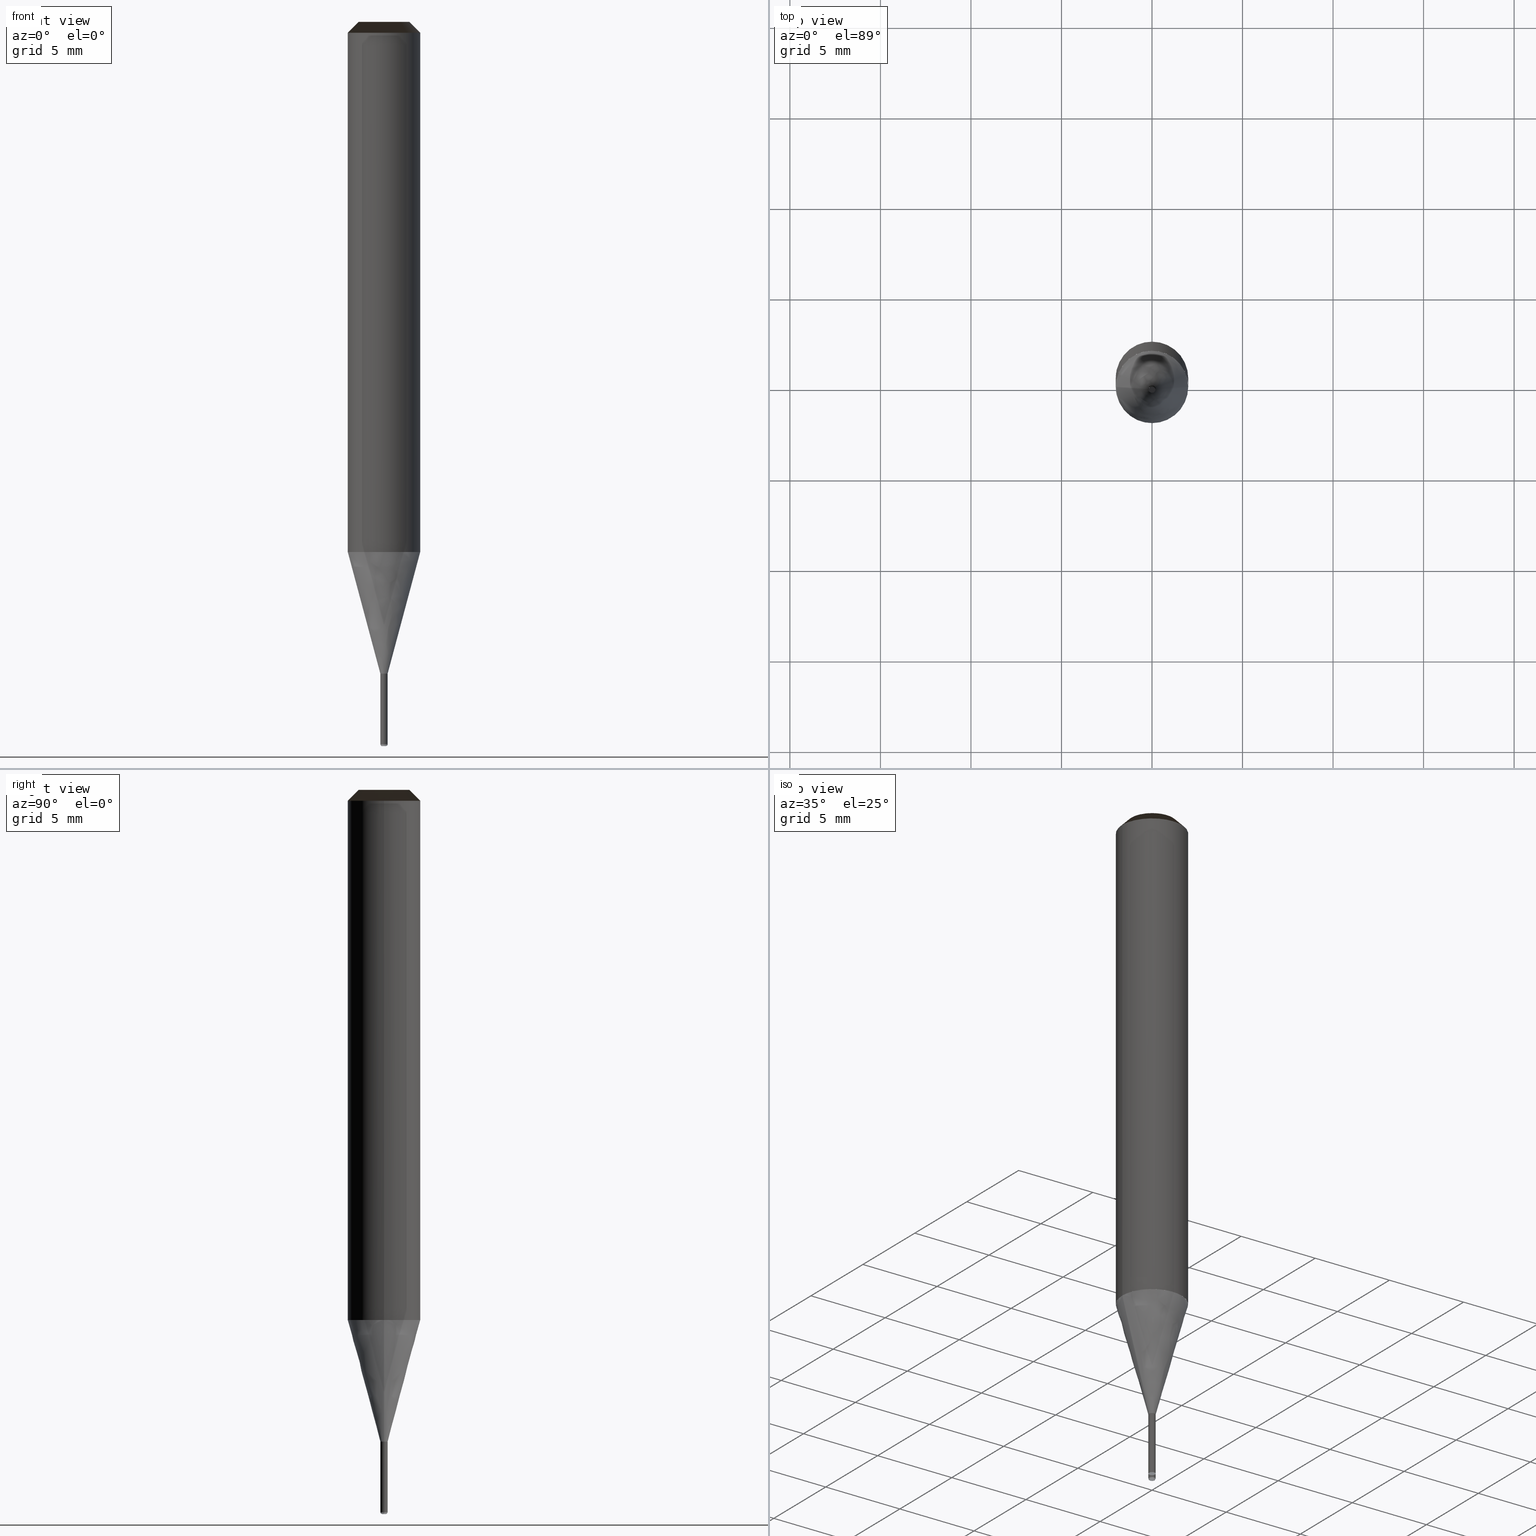
[diagram: canonical four-view strip — front | top / right | iso, engineering-drawing reading convention]
A machine part, canonical four-view strip (front | top / right | iso — engineering-drawing reading convention). The complete STEP part file that produces these views, byte-faithful:
ISO-10303-21;
HEADER;
/* Generated by ISBE GmbH (www.isbe.de) */
/* OPTION: using custom schema-name function */

FILE_DESCRIPTION(
/* description */ (''),
/* implementation_level */ '2;1');

FILE_NAME(
/*name*/ 'SHRN-2004-R001-040-STH',
/*time_stamp*/'2023-9-15T12:48:29',
/*author*/ ('ISBE GmbH'),
/*organization*/ ('ISBE GmbH'),
/*preprocessor_version*/ 'STEP IO v1.0',
/*originating_system*/ '',
/*authorisation*/ '');

FILE_SCHEMA (('AUTOMOTIVE_DESIGN'));
ENDSEC;

DATA;
#10=SHAPE_DEFINITION_REPRESENTATION(#11,#57);
#11=PRODUCT_DEFINITION_SHAPE('Document','',#13);
#12=PRODUCT_DEFINITION_CONTEXT('3D Mechanical Parts',#17,'design');
#13=PRODUCT_DEFINITION('A','First version',#14,#12);
#14=PRODUCT_DEFINITION_FORMATION_WITH_SPECIFIED_SOURCE('A','First version',#19,.MADE.);
#15=PRODUCT_RELATED_PRODUCT_CATEGORY('tool','tool',(#19));
#16=APPLICATION_PROTOCOL_DEFINITION('Draft International Standard', 'automotive_design',1999,#17);
#17=APPLICATION_CONTEXT('data for automotive mechanical design processes');
#18=PRODUCT_CONTEXT('3D Mechanical Parts',#17,'mechanical');
#19=PRODUCT('Document','Document','ISBE converted to STEP',(#18));
#20=(
LENGTH_UNIT()
NAMED_UNIT(*)
SI_UNIT(.MILLI.,.METRE.)
);
#21=(
NAMED_UNIT(*)
PLANE_ANGLE_UNIT()
SI_UNIT($,.RADIAN.)
);
#22=DIMENSIONAL_EXPONENTS(0.,0.,0.,0.,0.,0.,0.);
#23=PLANE_ANGLE_MEASURE_WITH_UNIT(PLANE_ANGLE_MEASURE(0.01745329252),#21);
#24=(
CONVERSION_BASED_UNIT('DEGREES',#23)
NAMED_UNIT(#22)
PLANE_ANGLE_UNIT()
);
#25=(
NAMED_UNIT(*)
SI_UNIT($,.STERADIAN.)
SOLID_ANGLE_UNIT()
);
#26=UNCERTAINTY_MEASURE_WITH_UNIT(LENGTH_MEASURE(0.001),#20, 'DISTANCE_ACCURACY_VALUE', 'Maximum model space distance between geometric entities at asserted connectivities');
#27=(
GEOMETRIC_REPRESENTATION_CONTEXT(3)
GLOBAL_UNCERTAINTY_ASSIGNED_CONTEXT((#26))
GLOBAL_UNIT_ASSIGNED_CONTEXT((#25,#24,#20))
REPRESENTATION_CONTEXT('ID1','3D')
);
#28=CARTESIAN_POINT('',(0.0,0.0,0.0));
#29=DIRECTION('',(1.0,0.0,0.0));
#30=DIRECTION('',(0.0,0.0,1.0));
#31=AXIS2_PLACEMENT_3D('',#28,#30,#29);
#32=CARTESIAN_POINT('',(0.0,0.0,0.0));
#33=DIRECTION('',(1.0,0.0,0.0));
#34=DIRECTION('',(0.0,0.0,1.0));
#35=AXIS2_PLACEMENT_3D('',#32,#34,#33);
#36=CARTESIAN_POINT('',(0.0,0.0,0.0));
#37=DIRECTION('',(1.0,0.0,0.0));
#38=DIRECTION('',(0.0,0.0,1.0));
#39=AXIS2_PLACEMENT_3D('',#36,#38,#37);
#40=CARTESIAN_POINT('',(0.0,0.0,0.0));
#41=DIRECTION('',(0.0,0.0,1.0));
#42=DIRECTION('',(1.0,0.0,0.0));
#43=AXIS2_PLACEMENT_3D('MCS',#40,#42,#41);
#44=CARTESIAN_POINT('',(0.0,0.0,29.282));
#45=DIRECTION('',(0.0,0.0,1.0));
#46=DIRECTION('',(1.0,0.0,0.0));
#47=AXIS2_PLACEMENT_3D('PCS',#44,#46,#45);
#48=CARTESIAN_POINT('',(0.0,0.0,-10.718));
#49=DIRECTION('',(0.0,0.0,1.0));
#50=DIRECTION('',(1.0,0.0,0.0));
#51=AXIS2_PLACEMENT_3D('CIP',#48,#50,#49);
#52=CARTESIAN_POINT('',(0.0,-0.2,-10.718));
#53=DIRECTION('',(0.0,0.0,1.0));
#54=DIRECTION('',(1.0,0.0,0.0));
#55=AXIS2_PLACEMENT_3D('CRP',#52,#54,#53);
#57=SHAPE_REPRESENTATION('Document',(#31,#35,#39,#43,#47,#51,#55),#27);
#58=DIRECTION('',(1.0,0.0,0.0));
#59=DIRECTION('',(0.0,0.0,1.0));
#60=CARTESIAN_POINT('',(-0.001999899997,-0.00002,-10.718));
#61=CARTESIAN_POINT('',(-0.001876510371,-0.012358345716,-10.718));
#62=CARTESIAN_POINT('',(-0.001750701282,-0.024938625564,-10.718));
#63=CARTESIAN_POINT('',(-0.001625433711,-0.037464756308,-10.718));
#64=CARTESIAN_POINT('',(-0.001500300158,-0.049977485926,-10.718));
#65=CARTESIAN_POINT('',(-0.001375220079,-0.062484868326,-10.718));
#66=CARTESIAN_POINT('',(-0.001250166712,-0.074989579831,-10.718));
#67=CARTESIAN_POINT('',(-0.001125128599,-0.087492765905,-10.718));
#68=CARTESIAN_POINT('',(-0.001000100018,-0.099994998875,-10.718));
#69=CARTESIAN_POINT('',(-0.000953992002,-0.103136663892,-10.717950656037));
#70=CARTESIAN_POINT('',(-0.000876759676,-0.106275435433,-10.717802672843));
#71=CARTESIAN_POINT('',(-0.00076580686,-0.109408151216,-10.71755619646));
#72=CARTESIAN_POINT('',(-0.000618591757,-0.112531623155,-10.717211470131));
#73=CARTESIAN_POINT('',(-0.000432640068,-0.115642637214,-10.71676883406));
#74=CARTESIAN_POINT('',(-0.000205557966,-0.118737953529,-10.716228725073));
#75=CARTESIAN_POINT('',(0.000064955117,-0.121814306822,-10.715591676194));
#76=CARTESIAN_POINT('',(0.000381093934,-0.124868407175,-10.714858316113));
#77=CARTESIAN_POINT('',(0.000744935158,-0.127896941187,-10.714029368568));
#78=CARTESIAN_POINT('',(0.001158425449,-0.130896573546,-10.71310565163));
#79=CARTESIAN_POINT('',(0.001623369912,-0.133863949072,-10.712088076895));
#80=CARTESIAN_POINT('',(0.002141420988,-0.136795695227,-10.710977648589));
#81=CARTESIAN_POINT('',(0.002714067836,-0.139688425143,-10.709775462568));
#82=CARTESIAN_POINT('',(0.003342626254,-0.142538741163,-10.708482705247));
#83=CARTESIAN_POINT('',(0.004028229177,-0.145343238931,-10.707100652419));
#84=CARTESIAN_POINT('',(0.004771817827,-0.148098512017,-10.705630668004));
#85=CARTESIAN_POINT('',(0.005574133534,-0.150801157091,-10.7040742027));
#86=CARTESIAN_POINT('',(0.006435710288,-0.153447779635,-10.70243279255));
#87=CARTESIAN_POINT('',(0.007356868075,-0.156035000195,-10.700708057427));
#88=CARTESIAN_POINT('',(0.008337707017,-0.158559461136,-10.698901699437));
#89=CARTESIAN_POINT('',(0.009378102382,-0.161017833897,-10.697015501238));
#90=CARTESIAN_POINT('',(0.01047770048,-0.163406826708,-10.695051324278));
#91=CARTESIAN_POINT('',(0.011635915496,-0.165723192732,-10.693011106963));
#92=CARTESIAN_POINT('',(0.012851927281,-0.167963738605,-10.690896862742));
#93=CARTESIAN_POINT('',(0.014124680134,-0.170125333313,-10.688710678119));
#94=CARTESIAN_POINT('',(0.015452882597,-0.172204917367,-10.686454710593));
#95=CARTESIAN_POINT('',(0.016835008275,-0.174199512217,-10.684131186532));
#96=CARTESIAN_POINT('',(0.018269297715,-0.176106229843,-10.681742398975));
#97=CARTESIAN_POINT('',(0.019753761321,-0.177922282463,-10.679290705365));
#98=CARTESIAN_POINT('',(0.021286183343,-0.179644992299,-10.676778525229));
#99=CARTESIAN_POINT('',(0.02286412691,-0.181271801308,-10.674208337785));
#100=CARTESIAN_POINT('',(0.024484940116,-0.182800280841,-10.671582679498));
#101=CARTESIAN_POINT('',(0.026145763133,-0.184228141121,-10.668904141575));
#102=CARTESIAN_POINT('',(0.027843536341,-0.185553240499,-10.66617536741));
#103=CARTESIAN_POINT('',(0.029575009438,-0.186773594392,-10.663399049974));
#104=CARTESIAN_POINT('',(0.031336751509,-0.187887383831,-10.660577929157));
#105=CARTESIAN_POINT('',(0.033125161996,-0.188892963569,-10.657714789063));
#106=CARTESIAN_POINT('',(0.034936482548,-0.189788869647,-10.654812455268));
#107=CARTESIAN_POINT('',(0.036766809676,-0.190573826375,-10.651873792025));
#108=CARTESIAN_POINT('',(0.038612108175,-0.191246752652,-10.648901699437));
#109=CARTESIAN_POINT('',(0.040468225237,-0.191806767574,-10.645899110604));
#110=CARTESIAN_POINT('',(0.042330905197,-0.192253195261,-10.642868988716));
#111=CARTESIAN_POINT('',(0.044195804835,-0.192585568868,-10.63981432414));
#112=CARTESIAN_POINT('',(0.046058509156,-0.192803633727,-10.636738131459));
#113=CARTESIAN_POINT('',(0.04791454758,-0.192907349584,-10.633643446504));
#114=CARTESIAN_POINT('',(0.049759410446,-0.192896891898,-10.630533323356));
#115=CARTESIAN_POINT('',(0.05158856575,-0.192772652183,-10.627410831332));
#116=CARTESIAN_POINT('',(0.053397476031,-0.192535237369,-10.624279051953));
#117=CARTESIAN_POINT('',(0.055181615323,-0.192185468181,-10.621141075908));
#118=CARTESIAN_POINT('',(0.056936486071,-0.191724376525,-10.618));
#119=CARTESIAN_POINT('',(0.096793252774,-0.175017331192,-10.543));
#120=CARTESIAN_POINT('',(0.132130531457,-0.150138345058,-10.468));
#121=CARTESIAN_POINT('',(0.16129834753,-0.118249072234,-10.393));
#122=CARTESIAN_POINT('',(0.182934792063,-0.080838492396,-10.318));
#123=CARTESIAN_POINT('',(0.001999899997,0.00002,-10.718));
#124=CARTESIAN_POINT('',(0.001876510371,0.012358345716,-10.718));
#125=CARTESIAN_POINT('',(0.001750701282,0.024938625564,-10.718));
#126=CARTESIAN_POINT('',(0.001625433711,0.037464756308,-10.718));
#127=CARTESIAN_POINT('',(0.001500300158,0.049977485926,-10.718));
#128=CARTESIAN_POINT('',(0.001375220079,0.062484868326,-10.718));
#129=CARTESIAN_POINT('',(0.001250166712,0.074989579831,-10.718));
#130=CARTESIAN_POINT('',(0.001125128599,0.087492765905,-10.718));
#131=CARTESIAN_POINT('',(0.001000100018,0.099994998875,-10.718));
#132=CARTESIAN_POINT('',(0.000953992002,0.103136663892,-10.717950656037));
#133=CARTESIAN_POINT('',(0.000876759676,0.106275435433,-10.717802672843));
#134=CARTESIAN_POINT('',(0.00076580686,0.109408151216,-10.71755619646));
#135=CARTESIAN_POINT('',(0.000618591757,0.112531623155,-10.717211470131));
#136=CARTESIAN_POINT('',(0.000432640068,0.115642637214,-10.71676883406));
#137=CARTESIAN_POINT('',(0.000205557966,0.118737953529,-10.716228725073));
#138=CARTESIAN_POINT('',(-0.000064955117,0.121814306822,-10.715591676194));
#139=CARTESIAN_POINT('',(-0.000381093934,0.124868407175,-10.714858316113));
#140=CARTESIAN_POINT('',(-0.000744935158,0.127896941187,-10.714029368568));
#141=CARTESIAN_POINT('',(-0.001158425449,0.130896573546,-10.71310565163));
#142=CARTESIAN_POINT('',(-0.001623369912,0.133863949072,-10.712088076895));
#143=CARTESIAN_POINT('',(-0.002141420988,0.136795695227,-10.710977648589));
#144=CARTESIAN_POINT('',(-0.002714067836,0.139688425143,-10.709775462568));
#145=CARTESIAN_POINT('',(-0.003342626254,0.142538741163,-10.708482705247));
#146=CARTESIAN_POINT('',(-0.004028229177,0.145343238931,-10.707100652419));
#147=CARTESIAN_POINT('',(-0.004771817827,0.148098512017,-10.705630668004));
#148=CARTESIAN_POINT('',(-0.005574133534,0.150801157091,-10.7040742027));
#149=CARTESIAN_POINT('',(-0.006435710288,0.153447779635,-10.70243279255));
#150=CARTESIAN_POINT('',(-0.007356868075,0.156035000195,-10.700708057427));
#151=CARTESIAN_POINT('',(-0.008337707017,0.158559461136,-10.698901699437));
#152=CARTESIAN_POINT('',(-0.009378102382,0.161017833897,-10.697015501238));
#153=CARTESIAN_POINT('',(-0.01047770048,0.163406826708,-10.695051324278));
#154=CARTESIAN_POINT('',(-0.011635915496,0.165723192732,-10.693011106963));
#155=CARTESIAN_POINT('',(-0.012851927281,0.167963738605,-10.690896862742));
#156=CARTESIAN_POINT('',(-0.014124680134,0.170125333313,-10.688710678119));
#157=CARTESIAN_POINT('',(-0.015452882597,0.172204917367,-10.686454710593));
#158=CARTESIAN_POINT('',(-0.016835008275,0.174199512217,-10.684131186532));
#159=CARTESIAN_POINT('',(-0.018269297715,0.176106229843,-10.681742398975));
#160=CARTESIAN_POINT('',(-0.019753761321,0.177922282463,-10.679290705365));
#161=CARTESIAN_POINT('',(-0.021286183343,0.179644992299,-10.676778525229));
#162=CARTESIAN_POINT('',(-0.02286412691,0.181271801308,-10.674208337785));
#163=CARTESIAN_POINT('',(-0.024484940116,0.182800280841,-10.671582679498));
#164=CARTESIAN_POINT('',(-0.026145763133,0.184228141121,-10.668904141575));
#165=CARTESIAN_POINT('',(-0.027843536341,0.185553240499,-10.66617536741));
#166=CARTESIAN_POINT('',(-0.029575009438,0.186773594392,-10.663399049974));
#167=CARTESIAN_POINT('',(-0.031336751509,0.187887383831,-10.660577929157));
#168=CARTESIAN_POINT('',(-0.033125161996,0.188892963569,-10.657714789063));
#169=CARTESIAN_POINT('',(-0.034936482548,0.189788869647,-10.654812455268));
#170=CARTESIAN_POINT('',(-0.036766809676,0.190573826375,-10.651873792025));
#171=CARTESIAN_POINT('',(-0.038612108175,0.191246752652,-10.648901699437));
#172=CARTESIAN_POINT('',(-0.040468225237,0.191806767574,-10.645899110604));
#173=CARTESIAN_POINT('',(-0.042330905197,0.192253195261,-10.642868988716));
#174=CARTESIAN_POINT('',(-0.044195804835,0.192585568868,-10.63981432414));
#175=CARTESIAN_POINT('',(-0.046058509156,0.192803633727,-10.636738131459));
#176=CARTESIAN_POINT('',(-0.04791454758,0.192907349584,-10.633643446504));
#177=CARTESIAN_POINT('',(-0.049759410446,0.192896891898,-10.630533323356));
#178=CARTESIAN_POINT('',(-0.05158856575,0.192772652183,-10.627410831332));
#179=CARTESIAN_POINT('',(-0.053397476031,0.192535237369,-10.624279051953));
#180=CARTESIAN_POINT('',(-0.055181615323,0.192185468181,-10.621141075908));
#181=CARTESIAN_POINT('',(-0.056936486071,0.191724376525,-10.618));
#182=CARTESIAN_POINT('',(-0.096793252774,0.175017331192,-10.543));
#183=CARTESIAN_POINT('',(-0.132130531457,0.150138345058,-10.468));
#184=CARTESIAN_POINT('',(-0.16129834753,0.118249072234,-10.393));
#185=CARTESIAN_POINT('',(-0.182934792063,0.080838492396,-10.318));
#186=CARTESIAN_POINT('',(0.0,0.0,-10.718));
#187=CARTESIAN_POINT('',(0.1,0.0,-10.718));
#188=CARTESIAN_POINT('',(0.1,0.1,-10.718));
#189=CARTESIAN_POINT('',(0.0,0.1,-10.718));
#190=CARTESIAN_POINT('',(-0.1,0.1,-10.718));
#191=CARTESIAN_POINT('',(-0.1,0.0,-10.718));
#192=CARTESIAN_POINT('',(0.141421356237,0.0,-10.718));
#193=CARTESIAN_POINT('',(0.141421356237,0.141421356237,-10.718));
#194=CARTESIAN_POINT('',(0.0,0.141421356237,-10.718));
#195=CARTESIAN_POINT('',(-0.141421356237,0.141421356237,-10.718));
#196=CARTESIAN_POINT('',(-0.141421356237,0.0,-10.718));
#197=CARTESIAN_POINT('',(0.170710678119,0.0,-10.688710678119));
#198=CARTESIAN_POINT('',(0.170710678119,0.170710678119,-10.688710678119));
#199=CARTESIAN_POINT('',(0.0,0.170710678119,-10.688710678119));
#200=CARTESIAN_POINT('',(-0.170710678119,0.170710678119,-10.688710678119));
#201=CARTESIAN_POINT('',(-0.170710678119,0.0,-10.688710678119));
#202=CARTESIAN_POINT('',(0.2,0.0,-10.659421356237));
#203=CARTESIAN_POINT('',(0.2,0.2,-10.659421356237));
#204=CARTESIAN_POINT('',(0.0,0.2,-10.659421356237));
#205=CARTESIAN_POINT('',(-0.2,0.2,-10.659421356237));
#206=CARTESIAN_POINT('',(-0.2,0.0,-10.659421356237));
#207=CARTESIAN_POINT('',(0.2,0.0,-10.618));
#208=CARTESIAN_POINT('',(0.2,0.2,-10.618));
#209=CARTESIAN_POINT('',(0.0,0.2,-10.618));
#210=CARTESIAN_POINT('',(-0.2,0.2,-10.618));
#211=CARTESIAN_POINT('',(-0.2,0.0,-10.618));
#212=CARTESIAN_POINT('',(0.2,0.0,-10.318));
#213=CARTESIAN_POINT('',(0.2,0.2,-10.318));
#214=CARTESIAN_POINT('',(0.0,0.2,-10.318));
#215=CARTESIAN_POINT('',(-0.2,0.2,-10.318));
#216=CARTESIAN_POINT('',(-0.2,0.0,-10.318));
#217=CARTESIAN_POINT('',(0.0,0.0,-10.318));
#218=CARTESIAN_POINT('',(-0.1,-0.1,-10.718));
#219=CARTESIAN_POINT('',(0.0,-0.1,-10.718));
#220=CARTESIAN_POINT('',(0.1,-0.1,-10.718));
#221=CARTESIAN_POINT('',(-0.141421356237,-0.141421356237,-10.718));
#222=CARTESIAN_POINT('',(0.0,-0.141421356237,-10.718));
#223=CARTESIAN_POINT('',(0.141421356237,-0.141421356237,-10.718));
#224=CARTESIAN_POINT('',(-0.170710678119,-0.170710678119,-10.688710678119));
#225=CARTESIAN_POINT('',(0.0,-0.170710678119,-10.688710678119));
#226=CARTESIAN_POINT('',(0.170710678119,-0.170710678119,-10.688710678119));
#227=CARTESIAN_POINT('',(-0.2,-0.2,-10.659421356237));
#228=CARTESIAN_POINT('',(0.0,-0.2,-10.659421356237));
#229=CARTESIAN_POINT('',(0.2,-0.2,-10.659421356237));
#230=CARTESIAN_POINT('',(-0.2,-0.2,-10.618));
#231=CARTESIAN_POINT('',(0.0,-0.2,-10.618));
#232=CARTESIAN_POINT('',(0.2,-0.2,-10.618));
#233=CARTESIAN_POINT('',(-0.2,-0.2,-10.318));
#234=CARTESIAN_POINT('',(0.0,-0.2,-10.318));
#235=CARTESIAN_POINT('',(0.2,-0.2,-10.318));
#236=CARTESIAN_POINT('',(0.2,0.0,-6.717691453624));
#237=CARTESIAN_POINT('',(0.2,0.2,-6.717691453624));
#238=CARTESIAN_POINT('',(0.0,0.2,-6.717691453624));
#239=CARTESIAN_POINT('',(-0.2,0.2,-6.717691453624));
#240=CARTESIAN_POINT('',(-0.2,0.0,-6.717691453624));
#241=CARTESIAN_POINT('',(2.0,0.0,0.0));
#242=CARTESIAN_POINT('',(2.0,2.0,0.0));
#243=CARTESIAN_POINT('',(0.0,2.0,0.0));
#244=CARTESIAN_POINT('',(-2.0,2.0,0.0));
#245=CARTESIAN_POINT('',(-2.0,0.0,0.0));
#246=CARTESIAN_POINT('',(2.0,0.0,28.682));
#247=CARTESIAN_POINT('',(2.0,2.0,28.682));
#248=CARTESIAN_POINT('',(0.0,2.0,28.682));
#249=CARTESIAN_POINT('',(-2.0,2.0,28.682));
#250=CARTESIAN_POINT('',(-2.0,0.0,28.682));
#251=CARTESIAN_POINT('',(1.4,0.0,29.282));
#252=CARTESIAN_POINT('',(1.4,1.4,29.282));
#253=CARTESIAN_POINT('',(0.0,1.4,29.282));
#254=CARTESIAN_POINT('',(-1.4,1.4,29.282));
#255=CARTESIAN_POINT('',(-1.4,0.0,29.282));
#256=CARTESIAN_POINT('',(0.0,0.0,29.282));
#257=CARTESIAN_POINT('',(-0.2,-0.2,-6.717691453624));
#258=CARTESIAN_POINT('',(0.0,-0.2,-6.717691453624));
#259=CARTESIAN_POINT('',(0.2,-0.2,-6.717691453624));
#260=CARTESIAN_POINT('',(-2.0,-2.0,0.0));
#261=CARTESIAN_POINT('',(0.0,-2.0,0.0));
#262=CARTESIAN_POINT('',(2.0,-2.0,0.0));
#263=CARTESIAN_POINT('',(-2.0,-2.0,28.682));
#264=CARTESIAN_POINT('',(0.0,-2.0,28.682));
#265=CARTESIAN_POINT('',(2.0,-2.0,28.682));
#266=CARTESIAN_POINT('',(-1.4,-1.4,29.282));
#267=CARTESIAN_POINT('',(0.0,-1.4,29.282));
#268=CARTESIAN_POINT('',(1.4,-1.4,29.282));
#269=(
BOUNDED_CURVE()
B_SPLINE_CURVE(1,(#60,#61,#62,#63,#64,#65,#66,#67,#68,#69,#70,#71,#72,#73,#74,#75,#76,#77,#78,#79,#80,#81,#82,#83,#84,#85,#86,#87,#88,#89,#90,#91,#92,#93,#94,#95,#96,#97,#98,#99,#100,#101,#102,#103,#104,#105,#106,#107,#108,#109,#110,#111,#112,#113,#114,#115,#116,#117,#118,#119,#120,#121,#122),.UNSPECIFIED.,.F.,.F.)
B_SPLINE_CURVE_WITH_KNOTS((2,1,1,1,1,1,1,1,1,1,1,1,1,1,1,1,1,1,1,1,1,1,1,1,1,1,1,1,1,1,1,1,1,1,1,1,1,1,1,1,1,1,1,1,1,1,1,1,1,1,1,1,1,1,1,1,1,1,1,1,1,1,2),
(0.0,0.020087942765,0.04056977618,0.060963449956,0.081335305484,0.101698455261,0.122057256577,0.142413574354,0.162768340392,0.167884180994,0.173001350503,0.178120389108,0.183241916522,0.188366632769,0.193495317859,0.198628830292,0.203768104338,0.208914146071,0.214068028138,0.21923088328,0.224403896656,0.229588296999,0.234785346725,0.239996331074,0.245222546417,0.250465287884,0.255725836454,0.261005445704,0.266305328364,0.2716266429,0.276970480275,0.282337851092,0.28772967327,0.293146760439,0.298589811173,0.304059399214,0.309555964785,0.315079807099,0.320631078121,0.326209777658,0.331815749794,0.337448680705,0.343108097845,0.348793370492,0.354503711627,0.36023818111,0.365995690096,0.371775006643,0.377574762433,0.383393460546,0.389229484204,0.395081106403,0.400946500358,0.406823750662,0.412710865085,0.418605786916,0.424506407762,0.430410580714,0.436316133788,0.577237100341,0.718158066894,0.859079033447,1.0),.UNSPECIFIED.)
CURVE()
GEOMETRIC_REPRESENTATION_ITEM()
RATIONAL_B_SPLINE_CURVE((1.0,1.0,1.0,1.0,1.0,1.0,1.0,1.0,1.0,1.0,1.0,1.0,1.0,1.0,1.0,1.0,1.0,1.0,1.0,1.0,1.0,1.0,1.0,1.0,1.0,1.0,1.0,1.0,1.0,1.0,1.0,1.0,1.0,1.0,1.0,1.0,1.0,1.0,1.0,1.0,1.0,1.0,1.0,1.0,1.0,1.0,1.0,1.0,1.0,1.0,1.0,1.0,1.0,1.0,1.0,1.0,1.0,1.0,1.0,1.0,1.0,1.0,1.0))
REPRESENTATION_ITEM('')
);
#270=(
BOUNDED_CURVE()
B_SPLINE_CURVE(1,(#123,#124,#125,#126,#127,#128,#129,#130,#131,#132,#133,#134,#135,#136,#137,#138,#139,#140,#141,#142,#143,#144,#145,#146,#147,#148,#149,#150,#151,#152,#153,#154,#155,#156,#157,#158,#159,#160,#161,#162,#163,#164,#165,#166,#167,#168,#169,#170,#171,#172,#173,#174,#175,#176,#177,#178,#179,#180,#181,#182,#183,#184,#185),.UNSPECIFIED.,.F.,.F.)
B_SPLINE_CURVE_WITH_KNOTS((2,1,1,1,1,1,1,1,1,1,1,1,1,1,1,1,1,1,1,1,1,1,1,1,1,1,1,1,1,1,1,1,1,1,1,1,1,1,1,1,1,1,1,1,1,1,1,1,1,1,1,1,1,1,1,1,1,1,1,1,1,1,2),
(0.0,0.020087942765,0.04056977618,0.060963449956,0.081335305484,0.101698455261,0.122057256577,0.142413574354,0.162768340392,0.167884180994,0.173001350503,0.178120389108,0.183241916522,0.188366632769,0.193495317859,0.198628830292,0.203768104338,0.208914146071,0.214068028138,0.21923088328,0.224403896656,0.229588296999,0.234785346725,0.239996331074,0.245222546417,0.250465287884,0.255725836454,0.261005445704,0.266305328364,0.2716266429,0.276970480275,0.282337851092,0.28772967327,0.293146760439,0.298589811173,0.304059399214,0.309555964785,0.315079807099,0.320631078121,0.326209777658,0.331815749794,0.337448680705,0.343108097845,0.348793370492,0.354503711627,0.36023818111,0.365995690096,0.371775006643,0.377574762433,0.383393460546,0.389229484204,0.395081106403,0.400946500358,0.406823750662,0.412710865085,0.418605786916,0.424506407762,0.430410580714,0.436316133788,0.577237100341,0.718158066894,0.859079033447,1.0),.UNSPECIFIED.)
CURVE()
GEOMETRIC_REPRESENTATION_ITEM()
RATIONAL_B_SPLINE_CURVE((1.0,1.0,1.0,1.0,1.0,1.0,1.0,1.0,1.0,1.0,1.0,1.0,1.0,1.0,1.0,1.0,1.0,1.0,1.0,1.0,1.0,1.0,1.0,1.0,1.0,1.0,1.0,1.0,1.0,1.0,1.0,1.0,1.0,1.0,1.0,1.0,1.0,1.0,1.0,1.0,1.0,1.0,1.0,1.0,1.0,1.0,1.0,1.0,1.0,1.0,1.0,1.0,1.0,1.0,1.0,1.0,1.0,1.0,1.0,1.0,1.0,1.0,1.0))
REPRESENTATION_ITEM('')
);
#271=SHAPE_REPRESENTATION_RELATIONSHIP('','',#57,#272);
#272=GEOMETRICALLY_BOUNDED_WIREFRAME_SHAPE_REPRESENTATION('Curves',(#273,#31),#27);
#273=GEOMETRIC_CURVE_SET('CurveSet',(#269,#270));
#274=(
BOUNDED_SURFACE()
B_SPLINE_SURFACE(1,2,(
(#186,#186,#186,#186,#186),
(#187,#188,#189,#190,#191)
), .UNSPECIFIED.,.F.,.F.,.F.)
B_SPLINE_SURFACE_WITH_KNOTS((2,2),(3,2,3),(
0.0,1.0),(
0.0,0.5,1.0), .UNSPECIFIED.)
GEOMETRIC_REPRESENTATION_ITEM()
RATIONAL_B_SPLINE_SURFACE(((1.0,0.707106781187,1.0,0.707106781187,1.0),
(1.0,0.707106781187,1.0,0.707106781187,1.0)
))
REPRESENTATION_ITEM('')
SURFACE()
);
#275=(
BOUNDED_CURVE()
B_SPLINE_CURVE(2,(#187,#188,#189,#190,#191),.UNSPECIFIED.,.F.,.F.)
B_SPLINE_CURVE_WITH_KNOTS((3,2,3),
(0.0,0.5,1.0),.UNSPECIFIED.)
CURVE()
GEOMETRIC_REPRESENTATION_ITEM()
RATIONAL_B_SPLINE_CURVE((1.0,0.707106781187,1.0,0.707106781187,1.0))
REPRESENTATION_ITEM('')
);
#276=(
BOUNDED_CURVE()
B_SPLINE_CURVE(1,(#191,#186),.UNSPECIFIED.,.F.,.F.)
B_SPLINE_CURVE_WITH_KNOTS((2,2),
(0.0,1.0),.UNSPECIFIED.)
CURVE()
GEOMETRIC_REPRESENTATION_ITEM()
RATIONAL_B_SPLINE_CURVE((1.0,1.0))
REPRESENTATION_ITEM('')
);
#277=(
BOUNDED_CURVE()
B_SPLINE_CURVE(1,(#186,#187),.UNSPECIFIED.,.F.,.F.)
B_SPLINE_CURVE_WITH_KNOTS((2,2),
(0.0,1.0),.UNSPECIFIED.)
CURVE()
GEOMETRIC_REPRESENTATION_ITEM()
RATIONAL_B_SPLINE_CURVE((1.0,1.0))
REPRESENTATION_ITEM('')
);
#278=VERTEX_POINT('',#186);
#279=VERTEX_POINT('',#187);
#280=VERTEX_POINT('',#191);
#281=EDGE_CURVE('',#279,#280,#275,.T.);
#282=EDGE_CURVE('',#280,#278,#276,.T.);
#283=EDGE_CURVE('',#278,#279,#277,.T.);
#284=ORIENTED_EDGE('',*,*,#281,.T.);
#285=ORIENTED_EDGE('',*,*,#282,.T.);
#286=ORIENTED_EDGE('',*,*,#283,.T.);
#287=EDGE_LOOP('',(#284,#285,#286));
#288=FACE_OUTER_BOUND('',#287,.T.);
#289=ADVANCED_FACE('',(#288),#274,.T.);
#290=(
BOUNDED_SURFACE()
B_SPLINE_SURFACE(2,2,(
(#187,#188,#189,#190,#191),
(#192,#193,#194,#195,#196),
(#197,#198,#199,#200,#201),
(#202,#203,#204,#205,#206),
(#207,#208,#209,#210,#211)
), .UNSPECIFIED.,.F.,.F.,.F.)
B_SPLINE_SURFACE_WITH_KNOTS((3,2,3),(3,2,3),(
0.0,0.5,1.0),(
0.0,0.5,1.0), .UNSPECIFIED.)
GEOMETRIC_REPRESENTATION_ITEM()
RATIONAL_B_SPLINE_SURFACE(((1.0,0.707106781187,1.0,0.707106781187,1.0),
(0.923879532511,0.653281482438,0.923879532511,0.653281482438,0.923879532511),
(1.0,0.707106781187,1.0,0.707106781187,1.0),
(0.923879532511,0.653281482438,0.923879532511,0.653281482438,0.923879532511),
(1.0,0.707106781187,1.0,0.707106781187,1.0)
))
REPRESENTATION_ITEM('')
SURFACE()
);
#291=(
BOUNDED_CURVE()
B_SPLINE_CURVE(2,(#207,#208,#209,#210,#211),.UNSPECIFIED.,.F.,.F.)
B_SPLINE_CURVE_WITH_KNOTS((3,2,3),
(0.0,0.5,1.0),.UNSPECIFIED.)
CURVE()
GEOMETRIC_REPRESENTATION_ITEM()
RATIONAL_B_SPLINE_CURVE((1.0,0.707106781187,1.0,0.707106781187,1.0))
REPRESENTATION_ITEM('')
);
#292=(
BOUNDED_CURVE()
B_SPLINE_CURVE(2,(#211,#206,#201,#196,#191),.UNSPECIFIED.,.F.,.F.)
B_SPLINE_CURVE_WITH_KNOTS((3,2,3),
(0.0,0.5,1.0),.UNSPECIFIED.)
CURVE()
GEOMETRIC_REPRESENTATION_ITEM()
RATIONAL_B_SPLINE_CURVE((1.0,0.923879532511,1.0,0.923879532511,1.0))
REPRESENTATION_ITEM('')
);
#293=(
BOUNDED_CURVE()
B_SPLINE_CURVE(2,(#191,#190,#189,#188,#187),.UNSPECIFIED.,.F.,.F.)
B_SPLINE_CURVE_WITH_KNOTS((3,2,3),
(0.0,0.5,1.0),.UNSPECIFIED.)
CURVE()
GEOMETRIC_REPRESENTATION_ITEM()
RATIONAL_B_SPLINE_CURVE((1.0,0.707106781187,1.0,0.707106781187,1.0))
REPRESENTATION_ITEM('')
);
#294=(
BOUNDED_CURVE()
B_SPLINE_CURVE(2,(#187,#192,#197,#202,#207),.UNSPECIFIED.,.F.,.F.)
B_SPLINE_CURVE_WITH_KNOTS((3,2,3),
(0.0,0.5,1.0),.UNSPECIFIED.)
CURVE()
GEOMETRIC_REPRESENTATION_ITEM()
RATIONAL_B_SPLINE_CURVE((1.0,0.923879532511,1.0,0.923879532511,1.0))
REPRESENTATION_ITEM('')
);
#295=VERTEX_POINT('',#187);
#296=VERTEX_POINT('',#191);
#297=VERTEX_POINT('',#207);
#298=VERTEX_POINT('',#211);
#299=EDGE_CURVE('',#297,#298,#291,.T.);
#300=EDGE_CURVE('',#298,#296,#292,.T.);
#301=EDGE_CURVE('',#296,#295,#293,.T.);
#302=EDGE_CURVE('',#295,#297,#294,.T.);
#303=ORIENTED_EDGE('',*,*,#299,.T.);
#304=ORIENTED_EDGE('',*,*,#300,.T.);
#305=ORIENTED_EDGE('',*,*,#301,.T.);
#306=ORIENTED_EDGE('',*,*,#302,.T.);
#307=EDGE_LOOP('',(#303,#304,#305,#306));
#308=FACE_OUTER_BOUND('',#307,.T.);
#309=ADVANCED_FACE('',(#308),#290,.T.);
#310=(
BOUNDED_SURFACE()
B_SPLINE_SURFACE(1,2,(
(#207,#208,#209,#210,#211),
(#212,#213,#214,#215,#216)
), .UNSPECIFIED.,.F.,.F.,.F.)
B_SPLINE_SURFACE_WITH_KNOTS((2,2),(3,2,3),(
0.0,1.0),(
0.0,0.5,1.0), .UNSPECIFIED.)
GEOMETRIC_REPRESENTATION_ITEM()
RATIONAL_B_SPLINE_SURFACE(((1.0,0.707106781187,1.0,0.707106781187,1.0),
(1.0,0.707106781187,1.0,0.707106781187,1.0)
))
REPRESENTATION_ITEM('')
SURFACE()
);
#311=(
BOUNDED_CURVE()
B_SPLINE_CURVE(2,(#212,#213,#214,#215,#216),.UNSPECIFIED.,.F.,.F.)
B_SPLINE_CURVE_WITH_KNOTS((3,2,3),
(0.0,0.5,1.0),.UNSPECIFIED.)
CURVE()
GEOMETRIC_REPRESENTATION_ITEM()
RATIONAL_B_SPLINE_CURVE((1.0,0.707106781187,1.0,0.707106781187,1.0))
REPRESENTATION_ITEM('')
);
#312=(
BOUNDED_CURVE()
B_SPLINE_CURVE(1,(#216,#211),.UNSPECIFIED.,.F.,.F.)
B_SPLINE_CURVE_WITH_KNOTS((2,2),
(0.0,1.0),.UNSPECIFIED.)
CURVE()
GEOMETRIC_REPRESENTATION_ITEM()
RATIONAL_B_SPLINE_CURVE((1.0,1.0))
REPRESENTATION_ITEM('')
);
#313=(
BOUNDED_CURVE()
B_SPLINE_CURVE(2,(#211,#210,#209,#208,#207),.UNSPECIFIED.,.F.,.F.)
B_SPLINE_CURVE_WITH_KNOTS((3,2,3),
(0.0,0.5,1.0),.UNSPECIFIED.)
CURVE()
GEOMETRIC_REPRESENTATION_ITEM()
RATIONAL_B_SPLINE_CURVE((1.0,0.707106781187,1.0,0.707106781187,1.0))
REPRESENTATION_ITEM('')
);
#314=(
BOUNDED_CURVE()
B_SPLINE_CURVE(1,(#207,#212),.UNSPECIFIED.,.F.,.F.)
B_SPLINE_CURVE_WITH_KNOTS((2,2),
(0.0,1.0),.UNSPECIFIED.)
CURVE()
GEOMETRIC_REPRESENTATION_ITEM()
RATIONAL_B_SPLINE_CURVE((1.0,1.0))
REPRESENTATION_ITEM('')
);
#315=VERTEX_POINT('',#207);
#316=VERTEX_POINT('',#211);
#317=VERTEX_POINT('',#212);
#318=VERTEX_POINT('',#216);
#319=EDGE_CURVE('',#317,#318,#311,.T.);
#320=EDGE_CURVE('',#318,#316,#312,.T.);
#321=EDGE_CURVE('',#316,#315,#313,.T.);
#322=EDGE_CURVE('',#315,#317,#314,.T.);
#323=ORIENTED_EDGE('',*,*,#319,.T.);
#324=ORIENTED_EDGE('',*,*,#320,.T.);
#325=ORIENTED_EDGE('',*,*,#321,.T.);
#326=ORIENTED_EDGE('',*,*,#322,.T.);
#327=EDGE_LOOP('',(#323,#324,#325,#326));
#328=FACE_OUTER_BOUND('',#327,.T.);
#329=ADVANCED_FACE('',(#328),#310,.T.);
#330=(
BOUNDED_SURFACE()
B_SPLINE_SURFACE(1,2,(
(#212,#213,#214,#215,#216),
(#217,#217,#217,#217,#217)
), .UNSPECIFIED.,.F.,.F.,.F.)
B_SPLINE_SURFACE_WITH_KNOTS((2,2),(3,2,3),(
0.0,1.0),(
0.0,0.5,1.0), .UNSPECIFIED.)
GEOMETRIC_REPRESENTATION_ITEM()
RATIONAL_B_SPLINE_SURFACE(((1.0,0.707106781187,1.0,0.707106781187,1.0),
(1.0,0.707106781187,1.0,0.707106781187,1.0)
))
REPRESENTATION_ITEM('')
SURFACE()
);
#331=(
BOUNDED_CURVE()
B_SPLINE_CURVE(1,(#217,#212),.UNSPECIFIED.,.F.,.F.)
B_SPLINE_CURVE_WITH_KNOTS((2,2),
(0.0,1.0),.UNSPECIFIED.)
CURVE()
GEOMETRIC_REPRESENTATION_ITEM()
RATIONAL_B_SPLINE_CURVE((1.0,1.0))
REPRESENTATION_ITEM('')
);
#332=(
BOUNDED_CURVE()
B_SPLINE_CURVE(2,(#212,#213,#214,#215,#216),.UNSPECIFIED.,.F.,.F.)
B_SPLINE_CURVE_WITH_KNOTS((3,2,3),
(0.0,0.5,1.0),.UNSPECIFIED.)
CURVE()
GEOMETRIC_REPRESENTATION_ITEM()
RATIONAL_B_SPLINE_CURVE((1.0,0.707106781187,1.0,0.707106781187,1.0))
REPRESENTATION_ITEM('')
);
#333=(
BOUNDED_CURVE()
B_SPLINE_CURVE(1,(#216,#217),.UNSPECIFIED.,.F.,.F.)
B_SPLINE_CURVE_WITH_KNOTS((2,2),
(0.0,1.0),.UNSPECIFIED.)
CURVE()
GEOMETRIC_REPRESENTATION_ITEM()
RATIONAL_B_SPLINE_CURVE((1.0,1.0))
REPRESENTATION_ITEM('')
);
#334=VERTEX_POINT('',#212);
#335=VERTEX_POINT('',#216);
#336=VERTEX_POINT('',#217);
#337=EDGE_CURVE('',#336,#334,#331,.T.);
#338=EDGE_CURVE('',#334,#335,#332,.T.);
#339=EDGE_CURVE('',#335,#336,#333,.T.);
#340=ORIENTED_EDGE('',*,*,#337,.T.);
#341=ORIENTED_EDGE('',*,*,#338,.T.);
#342=ORIENTED_EDGE('',*,*,#339,.T.);
#343=EDGE_LOOP('',(#340,#341,#342));
#344=FACE_OUTER_BOUND('',#343,.T.);
#345=ADVANCED_FACE('',(#344),#330,.T.);
#346=(
BOUNDED_SURFACE()
B_SPLINE_SURFACE(1,2,(
(#186,#186,#186,#186,#186),
(#191,#218,#219,#220,#187)
), .UNSPECIFIED.,.F.,.F.,.F.)
B_SPLINE_SURFACE_WITH_KNOTS((2,2),(3,2,3),(
0.0,1.0),(
0.0,0.5,1.0), .UNSPECIFIED.)
GEOMETRIC_REPRESENTATION_ITEM()
RATIONAL_B_SPLINE_SURFACE(((1.0,0.707106781187,1.0,0.707106781187,1.0),
(1.0,0.707106781187,1.0,0.707106781187,1.0)
))
REPRESENTATION_ITEM('')
SURFACE()
);
#347=(
BOUNDED_CURVE()
B_SPLINE_CURVE(1,(#191,#186),.UNSPECIFIED.,.F.,.F.)
B_SPLINE_CURVE_WITH_KNOTS((2,2),
(0.0,1.0),.UNSPECIFIED.)
CURVE()
GEOMETRIC_REPRESENTATION_ITEM()
RATIONAL_B_SPLINE_CURVE((1.0,1.0))
REPRESENTATION_ITEM('')
);
#348=(
BOUNDED_CURVE()
B_SPLINE_CURVE(1,(#186,#187),.UNSPECIFIED.,.F.,.F.)
B_SPLINE_CURVE_WITH_KNOTS((2,2),
(0.0,1.0),.UNSPECIFIED.)
CURVE()
GEOMETRIC_REPRESENTATION_ITEM()
RATIONAL_B_SPLINE_CURVE((1.0,1.0))
REPRESENTATION_ITEM('')
);
#349=(
BOUNDED_CURVE()
B_SPLINE_CURVE(2,(#187,#220,#219,#218,#191),.UNSPECIFIED.,.F.,.F.)
B_SPLINE_CURVE_WITH_KNOTS((3,2,3),
(0.0,0.5,1.0),.UNSPECIFIED.)
CURVE()
GEOMETRIC_REPRESENTATION_ITEM()
RATIONAL_B_SPLINE_CURVE((1.0,0.707106781187,1.0,0.707106781187,1.0))
REPRESENTATION_ITEM('')
);
#350=VERTEX_POINT('',#186);
#351=VERTEX_POINT('',#187);
#352=VERTEX_POINT('',#191);
#353=EDGE_CURVE('',#352,#350,#347,.T.);
#354=EDGE_CURVE('',#350,#351,#348,.T.);
#355=EDGE_CURVE('',#351,#352,#349,.T.);
#356=ORIENTED_EDGE('',*,*,#353,.T.);
#357=ORIENTED_EDGE('',*,*,#354,.T.);
#358=ORIENTED_EDGE('',*,*,#355,.T.);
#359=EDGE_LOOP('',(#356,#357,#358));
#360=FACE_OUTER_BOUND('',#359,.T.);
#361=ADVANCED_FACE('',(#360),#346,.T.);
#362=(
BOUNDED_SURFACE()
B_SPLINE_SURFACE(2,2,(
(#191,#218,#219,#220,#187),
(#196,#221,#222,#223,#192),
(#201,#224,#225,#226,#197),
(#206,#227,#228,#229,#202),
(#211,#230,#231,#232,#207)
), .UNSPECIFIED.,.F.,.F.,.F.)
B_SPLINE_SURFACE_WITH_KNOTS((3,2,3),(3,2,3),(
0.0,0.5,1.0),(
0.0,0.5,1.0), .UNSPECIFIED.)
GEOMETRIC_REPRESENTATION_ITEM()
RATIONAL_B_SPLINE_SURFACE(((1.0,0.707106781187,1.0,0.707106781187,1.0),
(0.923879532511,0.653281482438,0.923879532511,0.653281482438,0.923879532511),
(1.0,0.707106781187,1.0,0.707106781187,1.0),
(0.923879532511,0.653281482438,0.923879532511,0.653281482438,0.923879532511),
(1.0,0.707106781187,1.0,0.707106781187,1.0)
))
REPRESENTATION_ITEM('')
SURFACE()
);
#363=(
BOUNDED_CURVE()
B_SPLINE_CURVE(2,(#211,#206,#201,#196,#191),.UNSPECIFIED.,.F.,.F.)
B_SPLINE_CURVE_WITH_KNOTS((3,2,3),
(0.0,0.5,1.0),.UNSPECIFIED.)
CURVE()
GEOMETRIC_REPRESENTATION_ITEM()
RATIONAL_B_SPLINE_CURVE((1.0,0.923879532511,1.0,0.923879532511,1.0))
REPRESENTATION_ITEM('')
);
#364=(
BOUNDED_CURVE()
B_SPLINE_CURVE(2,(#191,#218,#219,#220,#187),.UNSPECIFIED.,.F.,.F.)
B_SPLINE_CURVE_WITH_KNOTS((3,2,3),
(0.0,0.5,1.0),.UNSPECIFIED.)
CURVE()
GEOMETRIC_REPRESENTATION_ITEM()
RATIONAL_B_SPLINE_CURVE((1.0,0.707106781187,1.0,0.707106781187,1.0))
REPRESENTATION_ITEM('')
);
#365=(
BOUNDED_CURVE()
B_SPLINE_CURVE(2,(#187,#192,#197,#202,#207),.UNSPECIFIED.,.F.,.F.)
B_SPLINE_CURVE_WITH_KNOTS((3,2,3),
(0.0,0.5,1.0),.UNSPECIFIED.)
CURVE()
GEOMETRIC_REPRESENTATION_ITEM()
RATIONAL_B_SPLINE_CURVE((1.0,0.923879532511,1.0,0.923879532511,1.0))
REPRESENTATION_ITEM('')
);
#366=(
BOUNDED_CURVE()
B_SPLINE_CURVE(2,(#207,#232,#231,#230,#211),.UNSPECIFIED.,.F.,.F.)
B_SPLINE_CURVE_WITH_KNOTS((3,2,3),
(0.0,0.5,1.0),.UNSPECIFIED.)
CURVE()
GEOMETRIC_REPRESENTATION_ITEM()
RATIONAL_B_SPLINE_CURVE((1.0,0.707106781187,1.0,0.707106781187,1.0))
REPRESENTATION_ITEM('')
);
#367=VERTEX_POINT('',#187);
#368=VERTEX_POINT('',#191);
#369=VERTEX_POINT('',#207);
#370=VERTEX_POINT('',#211);
#371=EDGE_CURVE('',#370,#368,#363,.T.);
#372=EDGE_CURVE('',#368,#367,#364,.T.);
#373=EDGE_CURVE('',#367,#369,#365,.T.);
#374=EDGE_CURVE('',#369,#370,#366,.T.);
#375=ORIENTED_EDGE('',*,*,#371,.T.);
#376=ORIENTED_EDGE('',*,*,#372,.T.);
#377=ORIENTED_EDGE('',*,*,#373,.T.);
#378=ORIENTED_EDGE('',*,*,#374,.T.);
#379=EDGE_LOOP('',(#375,#376,#377,#378));
#380=FACE_OUTER_BOUND('',#379,.T.);
#381=ADVANCED_FACE('',(#380),#362,.T.);
#382=(
BOUNDED_SURFACE()
B_SPLINE_SURFACE(1,2,(
(#211,#230,#231,#232,#207),
(#216,#233,#234,#235,#212)
), .UNSPECIFIED.,.F.,.F.,.F.)
B_SPLINE_SURFACE_WITH_KNOTS((2,2),(3,2,3),(
0.0,1.0),(
0.0,0.5,1.0), .UNSPECIFIED.)
GEOMETRIC_REPRESENTATION_ITEM()
RATIONAL_B_SPLINE_SURFACE(((1.0,0.707106781187,1.0,0.707106781187,1.0),
(1.0,0.707106781187,1.0,0.707106781187,1.0)
))
REPRESENTATION_ITEM('')
SURFACE()
);
#383=(
BOUNDED_CURVE()
B_SPLINE_CURVE(1,(#216,#211),.UNSPECIFIED.,.F.,.F.)
B_SPLINE_CURVE_WITH_KNOTS((2,2),
(0.0,1.0),.UNSPECIFIED.)
CURVE()
GEOMETRIC_REPRESENTATION_ITEM()
RATIONAL_B_SPLINE_CURVE((1.0,1.0))
REPRESENTATION_ITEM('')
);
#384=(
BOUNDED_CURVE()
B_SPLINE_CURVE(2,(#211,#230,#231,#232,#207),.UNSPECIFIED.,.F.,.F.)
B_SPLINE_CURVE_WITH_KNOTS((3,2,3),
(0.0,0.5,1.0),.UNSPECIFIED.)
CURVE()
GEOMETRIC_REPRESENTATION_ITEM()
RATIONAL_B_SPLINE_CURVE((1.0,0.707106781187,1.0,0.707106781187,1.0))
REPRESENTATION_ITEM('')
);
#385=(
BOUNDED_CURVE()
B_SPLINE_CURVE(1,(#207,#212),.UNSPECIFIED.,.F.,.F.)
B_SPLINE_CURVE_WITH_KNOTS((2,2),
(0.0,1.0),.UNSPECIFIED.)
CURVE()
GEOMETRIC_REPRESENTATION_ITEM()
RATIONAL_B_SPLINE_CURVE((1.0,1.0))
REPRESENTATION_ITEM('')
);
#386=(
BOUNDED_CURVE()
B_SPLINE_CURVE(2,(#212,#235,#234,#233,#216),.UNSPECIFIED.,.F.,.F.)
B_SPLINE_CURVE_WITH_KNOTS((3,2,3),
(0.0,0.5,1.0),.UNSPECIFIED.)
CURVE()
GEOMETRIC_REPRESENTATION_ITEM()
RATIONAL_B_SPLINE_CURVE((1.0,0.707106781187,1.0,0.707106781187,1.0))
REPRESENTATION_ITEM('')
);
#387=VERTEX_POINT('',#207);
#388=VERTEX_POINT('',#211);
#389=VERTEX_POINT('',#212);
#390=VERTEX_POINT('',#216);
#391=EDGE_CURVE('',#390,#388,#383,.T.);
#392=EDGE_CURVE('',#388,#387,#384,.T.);
#393=EDGE_CURVE('',#387,#389,#385,.T.);
#394=EDGE_CURVE('',#389,#390,#386,.T.);
#395=ORIENTED_EDGE('',*,*,#391,.T.);
#396=ORIENTED_EDGE('',*,*,#392,.T.);
#397=ORIENTED_EDGE('',*,*,#393,.T.);
#398=ORIENTED_EDGE('',*,*,#394,.T.);
#399=EDGE_LOOP('',(#395,#396,#397,#398));
#400=FACE_OUTER_BOUND('',#399,.T.);
#401=ADVANCED_FACE('',(#400),#382,.T.);
#402=(
BOUNDED_SURFACE()
B_SPLINE_SURFACE(1,2,(
(#216,#233,#234,#235,#212),
(#217,#217,#217,#217,#217)
), .UNSPECIFIED.,.F.,.F.,.F.)
B_SPLINE_SURFACE_WITH_KNOTS((2,2),(3,2,3),(
0.0,1.0),(
0.0,0.5,1.0), .UNSPECIFIED.)
GEOMETRIC_REPRESENTATION_ITEM()
RATIONAL_B_SPLINE_SURFACE(((1.0,0.707106781187,1.0,0.707106781187,1.0),
(1.0,0.707106781187,1.0,0.707106781187,1.0)
))
REPRESENTATION_ITEM('')
SURFACE()
);
#403=(
BOUNDED_CURVE()
B_SPLINE_CURVE(1,(#217,#212),.UNSPECIFIED.,.F.,.F.)
B_SPLINE_CURVE_WITH_KNOTS((2,2),
(0.0,1.0),.UNSPECIFIED.)
CURVE()
GEOMETRIC_REPRESENTATION_ITEM()
RATIONAL_B_SPLINE_CURVE((1.0,1.0))
REPRESENTATION_ITEM('')
);
#404=(
BOUNDED_CURVE()
B_SPLINE_CURVE(2,(#212,#235,#234,#233,#216),.UNSPECIFIED.,.F.,.F.)
B_SPLINE_CURVE_WITH_KNOTS((3,2,3),
(0.0,0.5,1.0),.UNSPECIFIED.)
CURVE()
GEOMETRIC_REPRESENTATION_ITEM()
RATIONAL_B_SPLINE_CURVE((1.0,0.707106781187,1.0,0.707106781187,1.0))
REPRESENTATION_ITEM('')
);
#405=(
BOUNDED_CURVE()
B_SPLINE_CURVE(1,(#216,#217),.UNSPECIFIED.,.F.,.F.)
B_SPLINE_CURVE_WITH_KNOTS((2,2),
(0.0,1.0),.UNSPECIFIED.)
CURVE()
GEOMETRIC_REPRESENTATION_ITEM()
RATIONAL_B_SPLINE_CURVE((1.0,1.0))
REPRESENTATION_ITEM('')
);
#406=VERTEX_POINT('',#212);
#407=VERTEX_POINT('',#216);
#408=VERTEX_POINT('',#217);
#409=EDGE_CURVE('',#408,#406,#403,.T.);
#410=EDGE_CURVE('',#406,#407,#404,.T.);
#411=EDGE_CURVE('',#407,#408,#405,.T.);
#412=ORIENTED_EDGE('',*,*,#409,.T.);
#413=ORIENTED_EDGE('',*,*,#410,.T.);
#414=ORIENTED_EDGE('',*,*,#411,.T.);
#415=EDGE_LOOP('',(#412,#413,#414));
#416=FACE_OUTER_BOUND('',#415,.T.);
#417=ADVANCED_FACE('',(#416),#402,.T.);
#418=CLOSED_SHELL('',(#289,#309,#329,#345,#361,#381,#401,#417));
#419=SHAPE_REPRESENTATION_RELATIONSHIP('','',#57,#420);
#420=ADVANCED_BREP_SHAPE_REPRESENTATION('Solid0',(#421,#31),#27);
#421=MANIFOLD_SOLID_BREP('brep',#418);
#422=(
BOUNDED_SURFACE()
B_SPLINE_SURFACE(1,2,(
(#217,#217,#217,#217,#217),
(#212,#213,#214,#215,#216)
), .UNSPECIFIED.,.F.,.F.,.F.)
B_SPLINE_SURFACE_WITH_KNOTS((2,2),(3,2,3),(
0.0,1.0),(
0.0,0.5,1.0), .UNSPECIFIED.)
GEOMETRIC_REPRESENTATION_ITEM()
RATIONAL_B_SPLINE_SURFACE(((1.0,0.707106781187,1.0,0.707106781187,1.0),
(1.0,0.707106781187,1.0,0.707106781187,1.0)
))
REPRESENTATION_ITEM('')
SURFACE()
);
#423=(
BOUNDED_CURVE()
B_SPLINE_CURVE(2,(#212,#213,#214,#215,#216),.UNSPECIFIED.,.F.,.F.)
B_SPLINE_CURVE_WITH_KNOTS((3,2,3),
(0.0,0.5,1.0),.UNSPECIFIED.)
CURVE()
GEOMETRIC_REPRESENTATION_ITEM()
RATIONAL_B_SPLINE_CURVE((1.0,0.707106781187,1.0,0.707106781187,1.0))
REPRESENTATION_ITEM('')
);
#424=(
BOUNDED_CURVE()
B_SPLINE_CURVE(1,(#216,#217),.UNSPECIFIED.,.F.,.F.)
B_SPLINE_CURVE_WITH_KNOTS((2,2),
(0.0,1.0),.UNSPECIFIED.)
CURVE()
GEOMETRIC_REPRESENTATION_ITEM()
RATIONAL_B_SPLINE_CURVE((1.0,1.0))
REPRESENTATION_ITEM('')
);
#425=(
BOUNDED_CURVE()
B_SPLINE_CURVE(1,(#217,#212),.UNSPECIFIED.,.F.,.F.)
B_SPLINE_CURVE_WITH_KNOTS((2,2),
(0.0,1.0),.UNSPECIFIED.)
CURVE()
GEOMETRIC_REPRESENTATION_ITEM()
RATIONAL_B_SPLINE_CURVE((1.0,1.0))
REPRESENTATION_ITEM('')
);
#426=VERTEX_POINT('',#212);
#427=VERTEX_POINT('',#216);
#428=VERTEX_POINT('',#217);
#429=EDGE_CURVE('',#426,#427,#423,.T.);
#430=EDGE_CURVE('',#427,#428,#424,.T.);
#431=EDGE_CURVE('',#428,#426,#425,.T.);
#432=ORIENTED_EDGE('',*,*,#429,.T.);
#433=ORIENTED_EDGE('',*,*,#430,.T.);
#434=ORIENTED_EDGE('',*,*,#431,.T.);
#435=EDGE_LOOP('',(#432,#433,#434));
#436=FACE_OUTER_BOUND('',#435,.T.);
#437=ADVANCED_FACE('',(#436),#422,.T.);
#438=(
BOUNDED_SURFACE()
B_SPLINE_SURFACE(1,2,(
(#212,#213,#214,#215,#216),
(#236,#237,#238,#239,#240)
), .UNSPECIFIED.,.F.,.F.,.F.)
B_SPLINE_SURFACE_WITH_KNOTS((2,2),(3,2,3),(
0.0,1.0),(
0.0,0.5,1.0), .UNSPECIFIED.)
GEOMETRIC_REPRESENTATION_ITEM()
RATIONAL_B_SPLINE_SURFACE(((1.0,0.707106781187,1.0,0.707106781187,1.0),
(1.0,0.707106781187,1.0,0.707106781187,1.0)
))
REPRESENTATION_ITEM('')
SURFACE()
);
#439=(
BOUNDED_CURVE()
B_SPLINE_CURVE(2,(#236,#237,#238,#239,#240),.UNSPECIFIED.,.F.,.F.)
B_SPLINE_CURVE_WITH_KNOTS((3,2,3),
(0.0,0.5,1.0),.UNSPECIFIED.)
CURVE()
GEOMETRIC_REPRESENTATION_ITEM()
RATIONAL_B_SPLINE_CURVE((1.0,0.707106781187,1.0,0.707106781187,1.0))
REPRESENTATION_ITEM('')
);
#440=(
BOUNDED_CURVE()
B_SPLINE_CURVE(1,(#240,#216),.UNSPECIFIED.,.F.,.F.)
B_SPLINE_CURVE_WITH_KNOTS((2,2),
(0.0,1.0),.UNSPECIFIED.)
CURVE()
GEOMETRIC_REPRESENTATION_ITEM()
RATIONAL_B_SPLINE_CURVE((1.0,1.0))
REPRESENTATION_ITEM('')
);
#441=(
BOUNDED_CURVE()
B_SPLINE_CURVE(2,(#216,#215,#214,#213,#212),.UNSPECIFIED.,.F.,.F.)
B_SPLINE_CURVE_WITH_KNOTS((3,2,3),
(0.0,0.5,1.0),.UNSPECIFIED.)
CURVE()
GEOMETRIC_REPRESENTATION_ITEM()
RATIONAL_B_SPLINE_CURVE((1.0,0.707106781187,1.0,0.707106781187,1.0))
REPRESENTATION_ITEM('')
);
#442=(
BOUNDED_CURVE()
B_SPLINE_CURVE(1,(#212,#236),.UNSPECIFIED.,.F.,.F.)
B_SPLINE_CURVE_WITH_KNOTS((2,2),
(0.0,1.0),.UNSPECIFIED.)
CURVE()
GEOMETRIC_REPRESENTATION_ITEM()
RATIONAL_B_SPLINE_CURVE((1.0,1.0))
REPRESENTATION_ITEM('')
);
#443=VERTEX_POINT('',#212);
#444=VERTEX_POINT('',#216);
#445=VERTEX_POINT('',#236);
#446=VERTEX_POINT('',#240);
#447=EDGE_CURVE('',#445,#446,#439,.T.);
#448=EDGE_CURVE('',#446,#444,#440,.T.);
#449=EDGE_CURVE('',#444,#443,#441,.T.);
#450=EDGE_CURVE('',#443,#445,#442,.T.);
#451=ORIENTED_EDGE('',*,*,#447,.T.);
#452=ORIENTED_EDGE('',*,*,#448,.T.);
#453=ORIENTED_EDGE('',*,*,#449,.T.);
#454=ORIENTED_EDGE('',*,*,#450,.T.);
#455=EDGE_LOOP('',(#451,#452,#453,#454));
#456=FACE_OUTER_BOUND('',#455,.T.);
#457=ADVANCED_FACE('',(#456),#438,.T.);
#458=(
BOUNDED_SURFACE()
B_SPLINE_SURFACE(1,2,(
(#236,#237,#238,#239,#240),
(#241,#242,#243,#244,#245)
), .UNSPECIFIED.,.F.,.F.,.F.)
B_SPLINE_SURFACE_WITH_KNOTS((2,2),(3,2,3),(
0.0,1.0),(
0.0,0.5,1.0), .UNSPECIFIED.)
GEOMETRIC_REPRESENTATION_ITEM()
RATIONAL_B_SPLINE_SURFACE(((1.0,0.707106781187,1.0,0.707106781187,1.0),
(1.0,0.707106781187,1.0,0.707106781187,1.0)
))
REPRESENTATION_ITEM('')
SURFACE()
);
#459=(
BOUNDED_CURVE()
B_SPLINE_CURVE(2,(#241,#242,#243,#244,#245),.UNSPECIFIED.,.F.,.F.)
B_SPLINE_CURVE_WITH_KNOTS((3,2,3),
(0.0,0.5,1.0),.UNSPECIFIED.)
CURVE()
GEOMETRIC_REPRESENTATION_ITEM()
RATIONAL_B_SPLINE_CURVE((1.0,0.707106781187,1.0,0.707106781187,1.0))
REPRESENTATION_ITEM('')
);
#460=(
BOUNDED_CURVE()
B_SPLINE_CURVE(1,(#245,#240),.UNSPECIFIED.,.F.,.F.)
B_SPLINE_CURVE_WITH_KNOTS((2,2),
(0.0,1.0),.UNSPECIFIED.)
CURVE()
GEOMETRIC_REPRESENTATION_ITEM()
RATIONAL_B_SPLINE_CURVE((1.0,1.0))
REPRESENTATION_ITEM('')
);
#461=(
BOUNDED_CURVE()
B_SPLINE_CURVE(2,(#240,#239,#238,#237,#236),.UNSPECIFIED.,.F.,.F.)
B_SPLINE_CURVE_WITH_KNOTS((3,2,3),
(0.0,0.5,1.0),.UNSPECIFIED.)
CURVE()
GEOMETRIC_REPRESENTATION_ITEM()
RATIONAL_B_SPLINE_CURVE((1.0,0.707106781187,1.0,0.707106781187,1.0))
REPRESENTATION_ITEM('')
);
#462=(
BOUNDED_CURVE()
B_SPLINE_CURVE(1,(#236,#241),.UNSPECIFIED.,.F.,.F.)
B_SPLINE_CURVE_WITH_KNOTS((2,2),
(0.0,1.0),.UNSPECIFIED.)
CURVE()
GEOMETRIC_REPRESENTATION_ITEM()
RATIONAL_B_SPLINE_CURVE((1.0,1.0))
REPRESENTATION_ITEM('')
);
#463=VERTEX_POINT('',#236);
#464=VERTEX_POINT('',#240);
#465=VERTEX_POINT('',#241);
#466=VERTEX_POINT('',#245);
#467=EDGE_CURVE('',#465,#466,#459,.T.);
#468=EDGE_CURVE('',#466,#464,#460,.T.);
#469=EDGE_CURVE('',#464,#463,#461,.T.);
#470=EDGE_CURVE('',#463,#465,#462,.T.);
#471=ORIENTED_EDGE('',*,*,#467,.T.);
#472=ORIENTED_EDGE('',*,*,#468,.T.);
#473=ORIENTED_EDGE('',*,*,#469,.T.);
#474=ORIENTED_EDGE('',*,*,#470,.T.);
#475=EDGE_LOOP('',(#471,#472,#473,#474));
#476=FACE_OUTER_BOUND('',#475,.T.);
#477=ADVANCED_FACE('',(#476),#458,.T.);
#478=(
BOUNDED_SURFACE()
B_SPLINE_SURFACE(1,2,(
(#241,#242,#243,#244,#245),
(#246,#247,#248,#249,#250)
), .UNSPECIFIED.,.F.,.F.,.F.)
B_SPLINE_SURFACE_WITH_KNOTS((2,2),(3,2,3),(
0.0,1.0),(
0.0,0.5,1.0), .UNSPECIFIED.)
GEOMETRIC_REPRESENTATION_ITEM()
RATIONAL_B_SPLINE_SURFACE(((1.0,0.707106781187,1.0,0.707106781187,1.0),
(1.0,0.707106781187,1.0,0.707106781187,1.0)
))
REPRESENTATION_ITEM('')
SURFACE()
);
#479=(
BOUNDED_CURVE()
B_SPLINE_CURVE(2,(#246,#247,#248,#249,#250),.UNSPECIFIED.,.F.,.F.)
B_SPLINE_CURVE_WITH_KNOTS((3,2,3),
(0.0,0.5,1.0),.UNSPECIFIED.)
CURVE()
GEOMETRIC_REPRESENTATION_ITEM()
RATIONAL_B_SPLINE_CURVE((1.0,0.707106781187,1.0,0.707106781187,1.0))
REPRESENTATION_ITEM('')
);
#480=(
BOUNDED_CURVE()
B_SPLINE_CURVE(1,(#250,#245),.UNSPECIFIED.,.F.,.F.)
B_SPLINE_CURVE_WITH_KNOTS((2,2),
(0.0,1.0),.UNSPECIFIED.)
CURVE()
GEOMETRIC_REPRESENTATION_ITEM()
RATIONAL_B_SPLINE_CURVE((1.0,1.0))
REPRESENTATION_ITEM('')
);
#481=(
BOUNDED_CURVE()
B_SPLINE_CURVE(2,(#245,#244,#243,#242,#241),.UNSPECIFIED.,.F.,.F.)
B_SPLINE_CURVE_WITH_KNOTS((3,2,3),
(0.0,0.5,1.0),.UNSPECIFIED.)
CURVE()
GEOMETRIC_REPRESENTATION_ITEM()
RATIONAL_B_SPLINE_CURVE((1.0,0.707106781187,1.0,0.707106781187,1.0))
REPRESENTATION_ITEM('')
);
#482=(
BOUNDED_CURVE()
B_SPLINE_CURVE(1,(#241,#246),.UNSPECIFIED.,.F.,.F.)
B_SPLINE_CURVE_WITH_KNOTS((2,2),
(0.0,1.0),.UNSPECIFIED.)
CURVE()
GEOMETRIC_REPRESENTATION_ITEM()
RATIONAL_B_SPLINE_CURVE((1.0,1.0))
REPRESENTATION_ITEM('')
);
#483=VERTEX_POINT('',#241);
#484=VERTEX_POINT('',#245);
#485=VERTEX_POINT('',#246);
#486=VERTEX_POINT('',#250);
#487=EDGE_CURVE('',#485,#486,#479,.T.);
#488=EDGE_CURVE('',#486,#484,#480,.T.);
#489=EDGE_CURVE('',#484,#483,#481,.T.);
#490=EDGE_CURVE('',#483,#485,#482,.T.);
#491=ORIENTED_EDGE('',*,*,#487,.T.);
#492=ORIENTED_EDGE('',*,*,#488,.T.);
#493=ORIENTED_EDGE('',*,*,#489,.T.);
#494=ORIENTED_EDGE('',*,*,#490,.T.);
#495=EDGE_LOOP('',(#491,#492,#493,#494));
#496=FACE_OUTER_BOUND('',#495,.T.);
#497=ADVANCED_FACE('',(#496),#478,.T.);
#498=(
BOUNDED_SURFACE()
B_SPLINE_SURFACE(1,2,(
(#246,#247,#248,#249,#250),
(#251,#252,#253,#254,#255)
), .UNSPECIFIED.,.F.,.F.,.F.)
B_SPLINE_SURFACE_WITH_KNOTS((2,2),(3,2,3),(
0.0,1.0),(
0.0,0.5,1.0), .UNSPECIFIED.)
GEOMETRIC_REPRESENTATION_ITEM()
RATIONAL_B_SPLINE_SURFACE(((1.0,0.707106781187,1.0,0.707106781187,1.0),
(1.0,0.707106781187,1.0,0.707106781187,1.0)
))
REPRESENTATION_ITEM('')
SURFACE()
);
#499=(
BOUNDED_CURVE()
B_SPLINE_CURVE(1,(#251,#246),.UNSPECIFIED.,.F.,.F.)
B_SPLINE_CURVE_WITH_KNOTS((2,2),
(0.0,1.0),.UNSPECIFIED.)
CURVE()
GEOMETRIC_REPRESENTATION_ITEM()
RATIONAL_B_SPLINE_CURVE((1.0,1.0))
REPRESENTATION_ITEM('')
);
#500=(
BOUNDED_CURVE()
B_SPLINE_CURVE(2,(#246,#247,#248,#249,#250),.UNSPECIFIED.,.F.,.F.)
B_SPLINE_CURVE_WITH_KNOTS((3,2,3),
(0.0,0.5,1.0),.UNSPECIFIED.)
CURVE()
GEOMETRIC_REPRESENTATION_ITEM()
RATIONAL_B_SPLINE_CURVE((1.0,0.707106781187,1.0,0.707106781187,1.0))
REPRESENTATION_ITEM('')
);
#501=(
BOUNDED_CURVE()
B_SPLINE_CURVE(1,(#250,#255),.UNSPECIFIED.,.F.,.F.)
B_SPLINE_CURVE_WITH_KNOTS((2,2),
(0.0,1.0),.UNSPECIFIED.)
CURVE()
GEOMETRIC_REPRESENTATION_ITEM()
RATIONAL_B_SPLINE_CURVE((1.0,1.0))
REPRESENTATION_ITEM('')
);
#502=(
BOUNDED_CURVE()
B_SPLINE_CURVE(2,(#255,#254,#253,#252,#251),.UNSPECIFIED.,.F.,.F.)
B_SPLINE_CURVE_WITH_KNOTS((3,2,3),
(0.0,0.5,1.0),.UNSPECIFIED.)
CURVE()
GEOMETRIC_REPRESENTATION_ITEM()
RATIONAL_B_SPLINE_CURVE((1.0,0.707106781187,1.0,0.707106781187,1.0))
REPRESENTATION_ITEM('')
);
#503=VERTEX_POINT('',#246);
#504=VERTEX_POINT('',#250);
#505=VERTEX_POINT('',#251);
#506=VERTEX_POINT('',#255);
#507=EDGE_CURVE('',#505,#503,#499,.T.);
#508=EDGE_CURVE('',#503,#504,#500,.T.);
#509=EDGE_CURVE('',#504,#506,#501,.T.);
#510=EDGE_CURVE('',#506,#505,#502,.T.);
#511=ORIENTED_EDGE('',*,*,#507,.T.);
#512=ORIENTED_EDGE('',*,*,#508,.T.);
#513=ORIENTED_EDGE('',*,*,#509,.T.);
#514=ORIENTED_EDGE('',*,*,#510,.T.);
#515=EDGE_LOOP('',(#511,#512,#513,#514));
#516=FACE_OUTER_BOUND('',#515,.T.);
#517=ADVANCED_FACE('',(#516),#498,.T.);
#518=(
BOUNDED_SURFACE()
B_SPLINE_SURFACE(1,2,(
(#251,#252,#253,#254,#255),
(#256,#256,#256,#256,#256)
), .UNSPECIFIED.,.F.,.F.,.F.)
B_SPLINE_SURFACE_WITH_KNOTS((2,2),(3,2,3),(
0.0,1.0),(
0.0,0.5,1.0), .UNSPECIFIED.)
GEOMETRIC_REPRESENTATION_ITEM()
RATIONAL_B_SPLINE_SURFACE(((1.0,0.707106781187,1.0,0.707106781187,1.0),
(1.0,0.707106781187,1.0,0.707106781187,1.0)
))
REPRESENTATION_ITEM('')
SURFACE()
);
#519=(
BOUNDED_CURVE()
B_SPLINE_CURVE(1,(#256,#251),.UNSPECIFIED.,.F.,.F.)
B_SPLINE_CURVE_WITH_KNOTS((2,2),
(0.0,1.0),.UNSPECIFIED.)
CURVE()
GEOMETRIC_REPRESENTATION_ITEM()
RATIONAL_B_SPLINE_CURVE((1.0,1.0))
REPRESENTATION_ITEM('')
);
#520=(
BOUNDED_CURVE()
B_SPLINE_CURVE(2,(#251,#252,#253,#254,#255),.UNSPECIFIED.,.F.,.F.)
B_SPLINE_CURVE_WITH_KNOTS((3,2,3),
(0.0,0.5,1.0),.UNSPECIFIED.)
CURVE()
GEOMETRIC_REPRESENTATION_ITEM()
RATIONAL_B_SPLINE_CURVE((1.0,0.707106781187,1.0,0.707106781187,1.0))
REPRESENTATION_ITEM('')
);
#521=(
BOUNDED_CURVE()
B_SPLINE_CURVE(1,(#255,#256),.UNSPECIFIED.,.F.,.F.)
B_SPLINE_CURVE_WITH_KNOTS((2,2),
(0.0,1.0),.UNSPECIFIED.)
CURVE()
GEOMETRIC_REPRESENTATION_ITEM()
RATIONAL_B_SPLINE_CURVE((1.0,1.0))
REPRESENTATION_ITEM('')
);
#522=VERTEX_POINT('',#251);
#523=VERTEX_POINT('',#255);
#524=VERTEX_POINT('',#256);
#525=EDGE_CURVE('',#524,#522,#519,.T.);
#526=EDGE_CURVE('',#522,#523,#520,.T.);
#527=EDGE_CURVE('',#523,#524,#521,.T.);
#528=ORIENTED_EDGE('',*,*,#525,.T.);
#529=ORIENTED_EDGE('',*,*,#526,.T.);
#530=ORIENTED_EDGE('',*,*,#527,.T.);
#531=EDGE_LOOP('',(#528,#529,#530));
#532=FACE_OUTER_BOUND('',#531,.T.);
#533=ADVANCED_FACE('',(#532),#518,.T.);
#534=(
BOUNDED_SURFACE()
B_SPLINE_SURFACE(1,2,(
(#217,#217,#217,#217,#217),
(#216,#233,#234,#235,#212)
), .UNSPECIFIED.,.F.,.F.,.F.)
B_SPLINE_SURFACE_WITH_KNOTS((2,2),(3,2,3),(
0.0,1.0),(
0.0,0.5,1.0), .UNSPECIFIED.)
GEOMETRIC_REPRESENTATION_ITEM()
RATIONAL_B_SPLINE_SURFACE(((1.0,0.707106781187,1.0,0.707106781187,1.0),
(1.0,0.707106781187,1.0,0.707106781187,1.0)
))
REPRESENTATION_ITEM('')
SURFACE()
);
#535=(
BOUNDED_CURVE()
B_SPLINE_CURVE(1,(#216,#217),.UNSPECIFIED.,.F.,.F.)
B_SPLINE_CURVE_WITH_KNOTS((2,2),
(0.0,1.0),.UNSPECIFIED.)
CURVE()
GEOMETRIC_REPRESENTATION_ITEM()
RATIONAL_B_SPLINE_CURVE((1.0,1.0))
REPRESENTATION_ITEM('')
);
#536=(
BOUNDED_CURVE()
B_SPLINE_CURVE(1,(#217,#212),.UNSPECIFIED.,.F.,.F.)
B_SPLINE_CURVE_WITH_KNOTS((2,2),
(0.0,1.0),.UNSPECIFIED.)
CURVE()
GEOMETRIC_REPRESENTATION_ITEM()
RATIONAL_B_SPLINE_CURVE((1.0,1.0))
REPRESENTATION_ITEM('')
);
#537=(
BOUNDED_CURVE()
B_SPLINE_CURVE(2,(#212,#235,#234,#233,#216),.UNSPECIFIED.,.F.,.F.)
B_SPLINE_CURVE_WITH_KNOTS((3,2,3),
(0.0,0.5,1.0),.UNSPECIFIED.)
CURVE()
GEOMETRIC_REPRESENTATION_ITEM()
RATIONAL_B_SPLINE_CURVE((1.0,0.707106781187,1.0,0.707106781187,1.0))
REPRESENTATION_ITEM('')
);
#538=VERTEX_POINT('',#212);
#539=VERTEX_POINT('',#216);
#540=VERTEX_POINT('',#217);
#541=EDGE_CURVE('',#539,#540,#535,.T.);
#542=EDGE_CURVE('',#540,#538,#536,.T.);
#543=EDGE_CURVE('',#538,#539,#537,.T.);
#544=ORIENTED_EDGE('',*,*,#541,.T.);
#545=ORIENTED_EDGE('',*,*,#542,.T.);
#546=ORIENTED_EDGE('',*,*,#543,.T.);
#547=EDGE_LOOP('',(#544,#545,#546));
#548=FACE_OUTER_BOUND('',#547,.T.);
#549=ADVANCED_FACE('',(#548),#534,.T.);
#550=(
BOUNDED_SURFACE()
B_SPLINE_SURFACE(1,2,(
(#216,#233,#234,#235,#212),
(#240,#257,#258,#259,#236)
), .UNSPECIFIED.,.F.,.F.,.F.)
B_SPLINE_SURFACE_WITH_KNOTS((2,2),(3,2,3),(
0.0,1.0),(
0.0,0.5,1.0), .UNSPECIFIED.)
GEOMETRIC_REPRESENTATION_ITEM()
RATIONAL_B_SPLINE_SURFACE(((1.0,0.707106781187,1.0,0.707106781187,1.0),
(1.0,0.707106781187,1.0,0.707106781187,1.0)
))
REPRESENTATION_ITEM('')
SURFACE()
);
#551=(
BOUNDED_CURVE()
B_SPLINE_CURVE(1,(#240,#216),.UNSPECIFIED.,.F.,.F.)
B_SPLINE_CURVE_WITH_KNOTS((2,2),
(0.0,1.0),.UNSPECIFIED.)
CURVE()
GEOMETRIC_REPRESENTATION_ITEM()
RATIONAL_B_SPLINE_CURVE((1.0,1.0))
REPRESENTATION_ITEM('')
);
#552=(
BOUNDED_CURVE()
B_SPLINE_CURVE(2,(#216,#233,#234,#235,#212),.UNSPECIFIED.,.F.,.F.)
B_SPLINE_CURVE_WITH_KNOTS((3,2,3),
(0.0,0.5,1.0),.UNSPECIFIED.)
CURVE()
GEOMETRIC_REPRESENTATION_ITEM()
RATIONAL_B_SPLINE_CURVE((1.0,0.707106781187,1.0,0.707106781187,1.0))
REPRESENTATION_ITEM('')
);
#553=(
BOUNDED_CURVE()
B_SPLINE_CURVE(1,(#212,#236),.UNSPECIFIED.,.F.,.F.)
B_SPLINE_CURVE_WITH_KNOTS((2,2),
(0.0,1.0),.UNSPECIFIED.)
CURVE()
GEOMETRIC_REPRESENTATION_ITEM()
RATIONAL_B_SPLINE_CURVE((1.0,1.0))
REPRESENTATION_ITEM('')
);
#554=(
BOUNDED_CURVE()
B_SPLINE_CURVE(2,(#236,#259,#258,#257,#240),.UNSPECIFIED.,.F.,.F.)
B_SPLINE_CURVE_WITH_KNOTS((3,2,3),
(0.0,0.5,1.0),.UNSPECIFIED.)
CURVE()
GEOMETRIC_REPRESENTATION_ITEM()
RATIONAL_B_SPLINE_CURVE((1.0,0.707106781187,1.0,0.707106781187,1.0))
REPRESENTATION_ITEM('')
);
#555=VERTEX_POINT('',#212);
#556=VERTEX_POINT('',#216);
#557=VERTEX_POINT('',#236);
#558=VERTEX_POINT('',#240);
#559=EDGE_CURVE('',#558,#556,#551,.T.);
#560=EDGE_CURVE('',#556,#555,#552,.T.);
#561=EDGE_CURVE('',#555,#557,#553,.T.);
#562=EDGE_CURVE('',#557,#558,#554,.T.);
#563=ORIENTED_EDGE('',*,*,#559,.T.);
#564=ORIENTED_EDGE('',*,*,#560,.T.);
#565=ORIENTED_EDGE('',*,*,#561,.T.);
#566=ORIENTED_EDGE('',*,*,#562,.T.);
#567=EDGE_LOOP('',(#563,#564,#565,#566));
#568=FACE_OUTER_BOUND('',#567,.T.);
#569=ADVANCED_FACE('',(#568),#550,.T.);
#570=(
BOUNDED_SURFACE()
B_SPLINE_SURFACE(1,2,(
(#240,#257,#258,#259,#236),
(#245,#260,#261,#262,#241)
), .UNSPECIFIED.,.F.,.F.,.F.)
B_SPLINE_SURFACE_WITH_KNOTS((2,2),(3,2,3),(
0.0,1.0),(
0.0,0.5,1.0), .UNSPECIFIED.)
GEOMETRIC_REPRESENTATION_ITEM()
RATIONAL_B_SPLINE_SURFACE(((1.0,0.707106781187,1.0,0.707106781187,1.0),
(1.0,0.707106781187,1.0,0.707106781187,1.0)
))
REPRESENTATION_ITEM('')
SURFACE()
);
#571=(
BOUNDED_CURVE()
B_SPLINE_CURVE(1,(#245,#240),.UNSPECIFIED.,.F.,.F.)
B_SPLINE_CURVE_WITH_KNOTS((2,2),
(0.0,1.0),.UNSPECIFIED.)
CURVE()
GEOMETRIC_REPRESENTATION_ITEM()
RATIONAL_B_SPLINE_CURVE((1.0,1.0))
REPRESENTATION_ITEM('')
);
#572=(
BOUNDED_CURVE()
B_SPLINE_CURVE(2,(#240,#257,#258,#259,#236),.UNSPECIFIED.,.F.,.F.)
B_SPLINE_CURVE_WITH_KNOTS((3,2,3),
(0.0,0.5,1.0),.UNSPECIFIED.)
CURVE()
GEOMETRIC_REPRESENTATION_ITEM()
RATIONAL_B_SPLINE_CURVE((1.0,0.707106781187,1.0,0.707106781187,1.0))
REPRESENTATION_ITEM('')
);
#573=(
BOUNDED_CURVE()
B_SPLINE_CURVE(1,(#236,#241),.UNSPECIFIED.,.F.,.F.)
B_SPLINE_CURVE_WITH_KNOTS((2,2),
(0.0,1.0),.UNSPECIFIED.)
CURVE()
GEOMETRIC_REPRESENTATION_ITEM()
RATIONAL_B_SPLINE_CURVE((1.0,1.0))
REPRESENTATION_ITEM('')
);
#574=(
BOUNDED_CURVE()
B_SPLINE_CURVE(2,(#241,#262,#261,#260,#245),.UNSPECIFIED.,.F.,.F.)
B_SPLINE_CURVE_WITH_KNOTS((3,2,3),
(0.0,0.5,1.0),.UNSPECIFIED.)
CURVE()
GEOMETRIC_REPRESENTATION_ITEM()
RATIONAL_B_SPLINE_CURVE((1.0,0.707106781187,1.0,0.707106781187,1.0))
REPRESENTATION_ITEM('')
);
#575=VERTEX_POINT('',#236);
#576=VERTEX_POINT('',#240);
#577=VERTEX_POINT('',#241);
#578=VERTEX_POINT('',#245);
#579=EDGE_CURVE('',#578,#576,#571,.T.);
#580=EDGE_CURVE('',#576,#575,#572,.T.);
#581=EDGE_CURVE('',#575,#577,#573,.T.);
#582=EDGE_CURVE('',#577,#578,#574,.T.);
#583=ORIENTED_EDGE('',*,*,#579,.T.);
#584=ORIENTED_EDGE('',*,*,#580,.T.);
#585=ORIENTED_EDGE('',*,*,#581,.T.);
#586=ORIENTED_EDGE('',*,*,#582,.T.);
#587=EDGE_LOOP('',(#583,#584,#585,#586));
#588=FACE_OUTER_BOUND('',#587,.T.);
#589=ADVANCED_FACE('',(#588),#570,.T.);
#590=(
BOUNDED_SURFACE()
B_SPLINE_SURFACE(1,2,(
(#245,#260,#261,#262,#241),
(#250,#263,#264,#265,#246)
), .UNSPECIFIED.,.F.,.F.,.F.)
B_SPLINE_SURFACE_WITH_KNOTS((2,2),(3,2,3),(
0.0,1.0),(
0.0,0.5,1.0), .UNSPECIFIED.)
GEOMETRIC_REPRESENTATION_ITEM()
RATIONAL_B_SPLINE_SURFACE(((1.0,0.707106781187,1.0,0.707106781187,1.0),
(1.0,0.707106781187,1.0,0.707106781187,1.0)
))
REPRESENTATION_ITEM('')
SURFACE()
);
#591=(
BOUNDED_CURVE()
B_SPLINE_CURVE(1,(#250,#245),.UNSPECIFIED.,.F.,.F.)
B_SPLINE_CURVE_WITH_KNOTS((2,2),
(0.0,1.0),.UNSPECIFIED.)
CURVE()
GEOMETRIC_REPRESENTATION_ITEM()
RATIONAL_B_SPLINE_CURVE((1.0,1.0))
REPRESENTATION_ITEM('')
);
#592=(
BOUNDED_CURVE()
B_SPLINE_CURVE(2,(#245,#260,#261,#262,#241),.UNSPECIFIED.,.F.,.F.)
B_SPLINE_CURVE_WITH_KNOTS((3,2,3),
(0.0,0.5,1.0),.UNSPECIFIED.)
CURVE()
GEOMETRIC_REPRESENTATION_ITEM()
RATIONAL_B_SPLINE_CURVE((1.0,0.707106781187,1.0,0.707106781187,1.0))
REPRESENTATION_ITEM('')
);
#593=(
BOUNDED_CURVE()
B_SPLINE_CURVE(1,(#241,#246),.UNSPECIFIED.,.F.,.F.)
B_SPLINE_CURVE_WITH_KNOTS((2,2),
(0.0,1.0),.UNSPECIFIED.)
CURVE()
GEOMETRIC_REPRESENTATION_ITEM()
RATIONAL_B_SPLINE_CURVE((1.0,1.0))
REPRESENTATION_ITEM('')
);
#594=(
BOUNDED_CURVE()
B_SPLINE_CURVE(2,(#246,#265,#264,#263,#250),.UNSPECIFIED.,.F.,.F.)
B_SPLINE_CURVE_WITH_KNOTS((3,2,3),
(0.0,0.5,1.0),.UNSPECIFIED.)
CURVE()
GEOMETRIC_REPRESENTATION_ITEM()
RATIONAL_B_SPLINE_CURVE((1.0,0.707106781187,1.0,0.707106781187,1.0))
REPRESENTATION_ITEM('')
);
#595=VERTEX_POINT('',#241);
#596=VERTEX_POINT('',#245);
#597=VERTEX_POINT('',#246);
#598=VERTEX_POINT('',#250);
#599=EDGE_CURVE('',#598,#596,#591,.T.);
#600=EDGE_CURVE('',#596,#595,#592,.T.);
#601=EDGE_CURVE('',#595,#597,#593,.T.);
#602=EDGE_CURVE('',#597,#598,#594,.T.);
#603=ORIENTED_EDGE('',*,*,#599,.T.);
#604=ORIENTED_EDGE('',*,*,#600,.T.);
#605=ORIENTED_EDGE('',*,*,#601,.T.);
#606=ORIENTED_EDGE('',*,*,#602,.T.);
#607=EDGE_LOOP('',(#603,#604,#605,#606));
#608=FACE_OUTER_BOUND('',#607,.T.);
#609=ADVANCED_FACE('',(#608),#590,.T.);
#610=(
BOUNDED_SURFACE()
B_SPLINE_SURFACE(1,2,(
(#250,#263,#264,#265,#246),
(#255,#266,#267,#268,#251)
), .UNSPECIFIED.,.F.,.F.,.F.)
B_SPLINE_SURFACE_WITH_KNOTS((2,2),(3,2,3),(
0.0,1.0),(
0.0,0.5,1.0), .UNSPECIFIED.)
GEOMETRIC_REPRESENTATION_ITEM()
RATIONAL_B_SPLINE_SURFACE(((1.0,0.707106781187,1.0,0.707106781187,1.0),
(1.0,0.707106781187,1.0,0.707106781187,1.0)
))
REPRESENTATION_ITEM('')
SURFACE()
);
#611=(
BOUNDED_CURVE()
B_SPLINE_CURVE(2,(#255,#266,#267,#268,#251),.UNSPECIFIED.,.F.,.F.)
B_SPLINE_CURVE_WITH_KNOTS((3,2,3),
(0.0,0.5,1.0),.UNSPECIFIED.)
CURVE()
GEOMETRIC_REPRESENTATION_ITEM()
RATIONAL_B_SPLINE_CURVE((1.0,0.707106781187,1.0,0.707106781187,1.0))
REPRESENTATION_ITEM('')
);
#612=(
BOUNDED_CURVE()
B_SPLINE_CURVE(1,(#251,#246),.UNSPECIFIED.,.F.,.F.)
B_SPLINE_CURVE_WITH_KNOTS((2,2),
(0.0,1.0),.UNSPECIFIED.)
CURVE()
GEOMETRIC_REPRESENTATION_ITEM()
RATIONAL_B_SPLINE_CURVE((1.0,1.0))
REPRESENTATION_ITEM('')
);
#613=(
BOUNDED_CURVE()
B_SPLINE_CURVE(2,(#246,#265,#264,#263,#250),.UNSPECIFIED.,.F.,.F.)
B_SPLINE_CURVE_WITH_KNOTS((3,2,3),
(0.0,0.5,1.0),.UNSPECIFIED.)
CURVE()
GEOMETRIC_REPRESENTATION_ITEM()
RATIONAL_B_SPLINE_CURVE((1.0,0.707106781187,1.0,0.707106781187,1.0))
REPRESENTATION_ITEM('')
);
#614=(
BOUNDED_CURVE()
B_SPLINE_CURVE(1,(#250,#255),.UNSPECIFIED.,.F.,.F.)
B_SPLINE_CURVE_WITH_KNOTS((2,2),
(0.0,1.0),.UNSPECIFIED.)
CURVE()
GEOMETRIC_REPRESENTATION_ITEM()
RATIONAL_B_SPLINE_CURVE((1.0,1.0))
REPRESENTATION_ITEM('')
);
#615=VERTEX_POINT('',#246);
#616=VERTEX_POINT('',#250);
#617=VERTEX_POINT('',#251);
#618=VERTEX_POINT('',#255);
#619=EDGE_CURVE('',#618,#617,#611,.T.);
#620=EDGE_CURVE('',#617,#615,#612,.T.);
#621=EDGE_CURVE('',#615,#616,#613,.T.);
#622=EDGE_CURVE('',#616,#618,#614,.T.);
#623=ORIENTED_EDGE('',*,*,#619,.T.);
#624=ORIENTED_EDGE('',*,*,#620,.T.);
#625=ORIENTED_EDGE('',*,*,#621,.T.);
#626=ORIENTED_EDGE('',*,*,#622,.T.);
#627=EDGE_LOOP('',(#623,#624,#625,#626));
#628=FACE_OUTER_BOUND('',#627,.T.);
#629=ADVANCED_FACE('',(#628),#610,.T.);
#630=(
BOUNDED_SURFACE()
B_SPLINE_SURFACE(1,2,(
(#255,#266,#267,#268,#251),
(#256,#256,#256,#256,#256)
), .UNSPECIFIED.,.F.,.F.,.F.)
B_SPLINE_SURFACE_WITH_KNOTS((2,2),(3,2,3),(
0.0,1.0),(
0.0,0.5,1.0), .UNSPECIFIED.)
GEOMETRIC_REPRESENTATION_ITEM()
RATIONAL_B_SPLINE_SURFACE(((1.0,0.707106781187,1.0,0.707106781187,1.0),
(1.0,0.707106781187,1.0,0.707106781187,1.0)
))
REPRESENTATION_ITEM('')
SURFACE()
);
#631=(
BOUNDED_CURVE()
B_SPLINE_CURVE(1,(#256,#251),.UNSPECIFIED.,.F.,.F.)
B_SPLINE_CURVE_WITH_KNOTS((2,2),
(0.0,1.0),.UNSPECIFIED.)
CURVE()
GEOMETRIC_REPRESENTATION_ITEM()
RATIONAL_B_SPLINE_CURVE((1.0,1.0))
REPRESENTATION_ITEM('')
);
#632=(
BOUNDED_CURVE()
B_SPLINE_CURVE(2,(#251,#268,#267,#266,#255),.UNSPECIFIED.,.F.,.F.)
B_SPLINE_CURVE_WITH_KNOTS((3,2,3),
(0.0,0.5,1.0),.UNSPECIFIED.)
CURVE()
GEOMETRIC_REPRESENTATION_ITEM()
RATIONAL_B_SPLINE_CURVE((1.0,0.707106781187,1.0,0.707106781187,1.0))
REPRESENTATION_ITEM('')
);
#633=(
BOUNDED_CURVE()
B_SPLINE_CURVE(1,(#255,#256),.UNSPECIFIED.,.F.,.F.)
B_SPLINE_CURVE_WITH_KNOTS((2,2),
(0.0,1.0),.UNSPECIFIED.)
CURVE()
GEOMETRIC_REPRESENTATION_ITEM()
RATIONAL_B_SPLINE_CURVE((1.0,1.0))
REPRESENTATION_ITEM('')
);
#634=VERTEX_POINT('',#251);
#635=VERTEX_POINT('',#255);
#636=VERTEX_POINT('',#256);
#637=EDGE_CURVE('',#636,#634,#631,.T.);
#638=EDGE_CURVE('',#634,#635,#632,.T.);
#639=EDGE_CURVE('',#635,#636,#633,.T.);
#640=ORIENTED_EDGE('',*,*,#637,.T.);
#641=ORIENTED_EDGE('',*,*,#638,.T.);
#642=ORIENTED_EDGE('',*,*,#639,.T.);
#643=EDGE_LOOP('',(#640,#641,#642));
#644=FACE_OUTER_BOUND('',#643,.T.);
#645=ADVANCED_FACE('',(#644),#630,.T.);
#646=CLOSED_SHELL('',(#437,#457,#477,#497,#517,#533,#549,#569,#589,#609,#629,#645));
#647=SHAPE_REPRESENTATION_RELATIONSHIP('','',#57,#648);
#648=ADVANCED_BREP_SHAPE_REPRESENTATION('Solid1',(#649,#31),#27);
#649=MANIFOLD_SOLID_BREP('brep',#646);
#650=PRESENTATION_LAYER_ASSIGNMENT('CUT','',(#421));
#651=PRESENTATION_LAYER_ASSIGNMENT('NOCUT','',(#649));
#652=PRESENTATION_LAYER_ASSIGNMENT('DETAILS','',(#269,#270));
#653=COLOUR_RGB('',0.8,0.8,0.8);
#654=COLOUR_RGB('',0.501960784314,0.501960784314,0.501960784314);
#655=COLOUR_RGB('',0.0,0.0,1.0);
#656=STYLED_ITEM('',(#657),#269);
#657=PRESENTATION_STYLE_ASSIGNMENT((#658));
#658=CURVE_STYLE('',#659,POSITIVE_LENGTH_MEASURE(0.02),#655);
#659=DRAUGHTING_PRE_DEFINED_CURVE_FONT('continuous');
#660=STYLED_ITEM('',(#661),#270);
#661=PRESENTATION_STYLE_ASSIGNMENT((#662));
#662=CURVE_STYLE('',#663,POSITIVE_LENGTH_MEASURE(0.02),#655);
#663=DRAUGHTING_PRE_DEFINED_CURVE_FONT('continuous');
#664=STYLED_ITEM('',(#665),#421);
#665=PRESENTATION_STYLE_ASSIGNMENT((#666));
#666=SURFACE_STYLE_USAGE(.BOTH.,#667);
#667=SURFACE_SIDE_STYLE('',(#668));
#668=SURFACE_STYLE_FILL_AREA(#669);
#669=FILL_AREA_STYLE('',(#670));
#670=FILL_AREA_STYLE_COLOUR('',#653);
#671=STYLED_ITEM('',(#672),#649);
#672=PRESENTATION_STYLE_ASSIGNMENT((#673));
#673=SURFACE_STYLE_USAGE(.BOTH.,#674);
#674=SURFACE_SIDE_STYLE('',(#675));
#675=SURFACE_STYLE_FILL_AREA(#676);
#676=FILL_AREA_STYLE('',(#677));
#677=FILL_AREA_STYLE_COLOUR('',#654);
#678=MECHANICAL_DESIGN_GEOMETRIC_PRESENTATION_REPRESENTATION('',(#656,#660,#664,#671),#27);
#679==CONSTRUCTIVE_GEOMETRY_REPRESENTATION('coordinate systems',(#43,#47,#51,#55), #27);
#680==CONSTRUCTIVE_GEOMETRY_REPRESENTATION_RELATIONSHIP('coordinate systems',$,#57,#679);

ENDSEC;
END-ISO-10303-21;